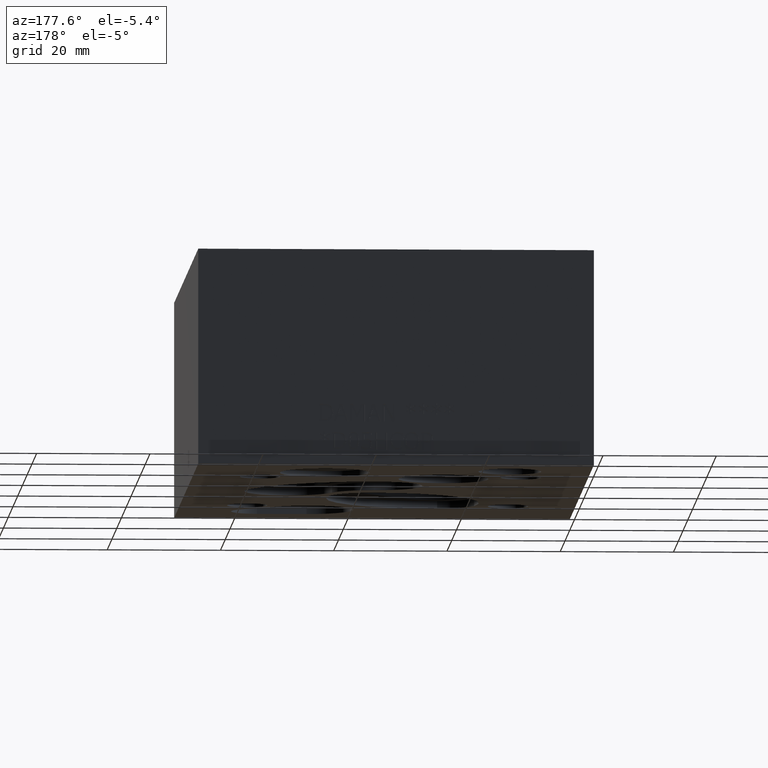
[diagram: clean part render]
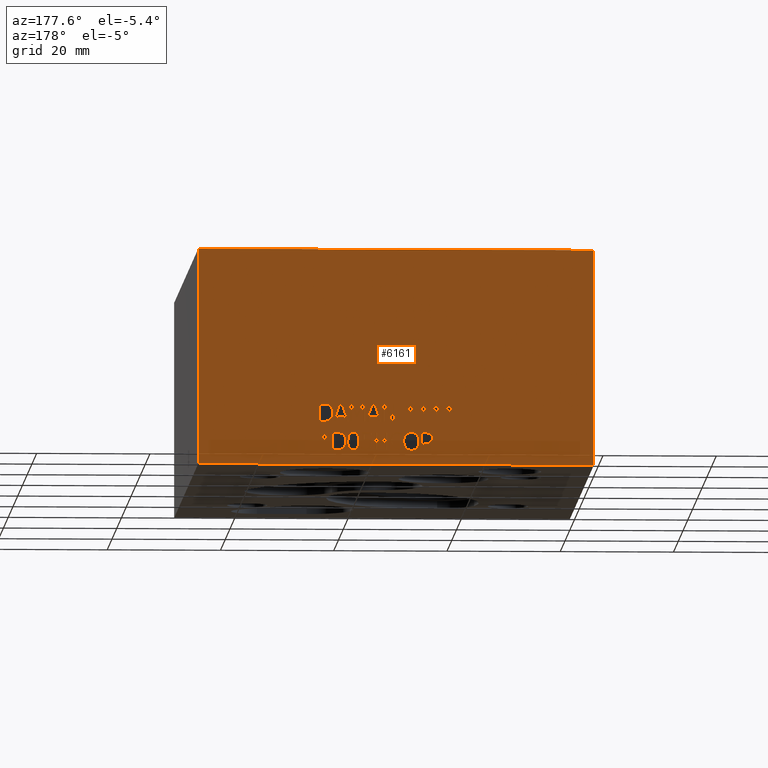
[diagram: same view with one face highlighted and labeled with its STEP entity id]
A machine part, auxiliary view. The second image highlights one B-rep face of the part: STEP entity #6161.
In plain terms, the highlighted planar face has unit normal (0, 1, 0).
Its self-contained STEP definition (entity closure, byte-faithful):
#111=FACE_BOUND('',#834,.T.);
#112=FACE_BOUND('',#835,.T.);
#113=FACE_BOUND('',#836,.T.);
#114=FACE_BOUND('',#837,.T.);
#115=FACE_BOUND('',#838,.T.);
#116=FACE_BOUND('',#839,.T.);
#117=FACE_BOUND('',#840,.T.);
#118=FACE_BOUND('',#841,.T.);
#119=FACE_BOUND('',#842,.T.);
#120=FACE_BOUND('',#843,.T.);
#121=FACE_BOUND('',#844,.T.);
#122=FACE_BOUND('',#845,.T.);
#123=FACE_BOUND('',#846,.T.);
#124=FACE_BOUND('',#847,.T.);
#125=FACE_BOUND('',#848,.T.);
#126=FACE_BOUND('',#849,.T.);
#127=FACE_BOUND('',#850,.T.);
#500=FACE_OUTER_BOUND('',#833,.T.);
#833=EDGE_LOOP('',(#5188,#5189,#5190,#5191));
#834=EDGE_LOOP('',(#5192,#5193,#5194,#5195,#5196,#5197,#5198,#5199,#5200,
#5201,#5202,#5203,#5204,#5205,#5206,#5207,#5208,#5209,#5210,#5211));
#835=EDGE_LOOP('',(#5212,#5213,#5214,#5215,#5216,#5217,#5218));
#836=EDGE_LOOP('',(#5219,#5220,#5221,#5222,#5223,#5224,#5225,#5226));
#837=EDGE_LOOP('',(#5227,#5228,#5229,#5230,#5231,#5232,#5233,#5234));
#838=EDGE_LOOP('',(#5235,#5236,#5237,#5238,#5239,#5240,#5241,#5242,#5243,
#5244,#5245,#5246,#5247));
#839=EDGE_LOOP('',(#5248,#5249,#5250,#5251,#5252,#5253,#5254,#5255,#5256,
#5257));
#840=EDGE_LOOP('',(#5258,#5259,#5260,#5261,#5262,#5263,#5264,#5265,#5266,
#5267,#5268,#5269,#5270,#5271,#5272,#5273,#5274,#5275));
#841=EDGE_LOOP('',(#5276,#5277,#5278,#5279,#5280,#5281,#5282,#5283,#5284,
#5285,#5286,#5287,#5288,#5289,#5290,#5291,#5292,#5293));
#842=EDGE_LOOP('',(#5294,#5295,#5296,#5297,#5298,#5299,#5300,#5301,#5302,
#5303,#5304,#5305,#5306,#5307,#5308,#5309,#5310,#5311));
#843=EDGE_LOOP('',(#5312,#5313,#5314,#5315,#5316,#5317,#5318,#5319,#5320,
#5321,#5322,#5323,#5324,#5325,#5326,#5327,#5328,#5329));
#844=EDGE_LOOP('',(#5330,#5331,#5332,#5333,#5334,#5335,#5336,#5337,#5338,
#5339,#5340,#5341,#5342,#5343,#5344,#5345,#5346,#5347));
#845=EDGE_LOOP('',(#5348,#5349,#5350,#5351,#5352,#5353,#5354));
#846=EDGE_LOOP('',(#5355,#5356,#5357,#5358,#5359,#5360,#5361,#5362,#5363,
#5364,#5365,#5366));
#847=EDGE_LOOP('',(#5367,#5368,#5369,#5370));
#848=EDGE_LOOP('',(#5371,#5372,#5373,#5374,#5375,#5376,#5377,#5378));
#849=EDGE_LOOP('',(#5379,#5380,#5381,#5382,#5383,#5384,#5385,#5386,#5387,
#5388,#5389,#5390,#5391,#5392,#5393,#5394,#5395,#5396,#5397,#5398));
#850=EDGE_LOOP('',(#5399,#5400,#5401,#5402,#5403,#5404,#5405,#5406,#5407));
#928=LINE('',#8057,#1594);
#930=LINE('',#8061,#1596);
#936=LINE('',#8121,#1602);
#938=LINE('',#8125,#1604);
#956=LINE('',#8347,#1622);
#959=LINE('',#8352,#1625);
#968=LINE('',#8394,#1634);
#971=LINE('',#8425,#1637);
#975=LINE('',#8433,#1641);
#978=LINE('',#8439,#1644);
#981=LINE('',#8445,#1647);
#988=LINE('',#8460,#1654);
#991=LINE('',#8466,#1657);
#994=LINE('',#8472,#1660);
#997=LINE('',#8477,#1663);
#1020=LINE('',#8525,#1686);
#1023=LINE('',#8530,#1689);
#1025=LINE('',#8534,#1691);
#1027=LINE('',#8538,#1693);
#1030=LINE('',#8544,#1696);
#1032=LINE('',#8548,#1698);
#1034=LINE('',#8552,#1700);
#1036=LINE('',#8555,#1702);
#1037=LINE('',#8559,#1703);
#1041=LINE('',#8567,#1707);
#1044=LINE('',#8573,#1710);
#1047=LINE('',#8579,#1713);
#1050=LINE('',#8585,#1716);
#1053=LINE('',#8591,#1719);
#1056=LINE('',#8597,#1722);
#1059=LINE('',#8603,#1725);
#1062=LINE('',#8609,#1728);
#1065=LINE('',#8615,#1731);
#1068=LINE('',#8621,#1734);
#1071=LINE('',#8627,#1737);
#1074=LINE('',#8632,#1740);
#1086=LINE('',#8659,#1752);
#1089=LINE('',#8664,#1755);
#1091=LINE('',#8668,#1757);
#1093=LINE('',#8672,#1759);
#1095=LINE('',#8676,#1761);
#1097=LINE('',#8680,#1763);
#1099=LINE('',#8684,#1765);
#1101=LINE('',#8688,#1767);
#1103=LINE('',#8692,#1769);
#1105=LINE('',#8695,#1771);
#1106=LINE('',#8699,#1772);
#1110=LINE('',#8707,#1776);
#1113=LINE('',#8713,#1779);
#1116=LINE('',#8719,#1782);
#1119=LINE('',#8725,#1785);
#1122=LINE('',#8731,#1788);
#1125=LINE('',#8737,#1791);
#1128=LINE('',#8743,#1794);
#1131=LINE('',#8749,#1797);
#1134=LINE('',#8755,#1800);
#1137=LINE('',#8761,#1803);
#1140=LINE('',#8767,#1806);
#1143=LINE('',#8773,#1809);
#1146=LINE('',#8779,#1812);
#1149=LINE('',#8785,#1815);
#1152=LINE('',#8791,#1818);
#1155=LINE('',#8797,#1821);
#1158=LINE('',#8802,#1824);
#1178=LINE('',#8845,#1844);
#1181=LINE('',#8850,#1847);
#1183=LINE('',#8854,#1849);
#1185=LINE('',#8858,#1851);
#1187=LINE('',#8862,#1853);
#1189=LINE('',#8866,#1855);
#1191=LINE('',#8870,#1857);
#1193=LINE('',#8874,#1859);
#1195=LINE('',#8878,#1861);
#1197=LINE('',#8882,#1863);
#1199=LINE('',#8886,#1865);
#1201=LINE('',#8890,#1867);
#1203=LINE('',#8894,#1869);
#1205=LINE('',#8898,#1871);
#1207=LINE('',#8902,#1873);
#1209=LINE('',#8906,#1875);
#1211=LINE('',#8910,#1877);
#1213=LINE('',#8913,#1879);
#1214=LINE('',#8917,#1880);
#1218=LINE('',#8925,#1884);
#1221=LINE('',#8931,#1887);
#1224=LINE('',#8937,#1890);
#1227=LINE('',#8943,#1893);
#1230=LINE('',#8949,#1896);
#1233=LINE('',#8955,#1899);
#1236=LINE('',#8961,#1902);
#1239=LINE('',#8967,#1905);
#1242=LINE('',#8973,#1908);
#1245=LINE('',#8979,#1911);
#1248=LINE('',#8985,#1914);
#1251=LINE('',#8991,#1917);
#1254=LINE('',#8997,#1920);
#1257=LINE('',#9003,#1923);
#1260=LINE('',#9009,#1926);
#1263=LINE('',#9015,#1929);
#1266=LINE('',#9020,#1932);
#1286=LINE('',#9063,#1952);
#1289=LINE('',#9068,#1955);
#1291=LINE('',#9072,#1957);
#1293=LINE('',#9076,#1959);
#1295=LINE('',#9080,#1961);
#1297=LINE('',#9084,#1963);
#1299=LINE('',#9088,#1965);
#1301=LINE('',#9092,#1967);
#1303=LINE('',#9096,#1969);
#1305=LINE('',#9100,#1971);
#1307=LINE('',#9104,#1973);
#1309=LINE('',#9108,#1975);
#1311=LINE('',#9112,#1977);
#1313=LINE('',#9116,#1979);
#1315=LINE('',#9120,#1981);
#1317=LINE('',#9124,#1983);
#1319=LINE('',#9128,#1985);
#1321=LINE('',#9131,#1987);
#1322=LINE('',#9135,#1988);
#1326=LINE('',#9143,#1992);
#1329=LINE('',#9149,#1995);
#1332=LINE('',#9155,#1998);
#1335=LINE('',#9161,#2001);
#1338=LINE('',#9167,#2004);
#1341=LINE('',#9173,#2007);
#1344=LINE('',#9179,#2010);
#1347=LINE('',#9185,#2013);
#1350=LINE('',#9191,#2016);
#1353=LINE('',#9197,#2019);
#1356=LINE('',#9203,#2022);
#1359=LINE('',#9209,#2025);
#1362=LINE('',#9215,#2028);
#1365=LINE('',#9221,#2031);
#1368=LINE('',#9227,#2034);
#1371=LINE('',#9233,#2037);
#1374=LINE('',#9238,#2040);
#1387=LINE('',#9379,#2053);
#1390=LINE('',#9384,#2056);
#1399=LINE('',#9426,#2065);
#1402=LINE('',#9457,#2068);
#1406=LINE('',#9465,#2072);
#1409=LINE('',#9471,#2075);
#1412=LINE('',#9477,#2078);
#1415=LINE('',#9483,#2081);
#1418=LINE('',#9489,#2084);
#1421=LINE('',#9495,#2087);
#1424=LINE('',#9501,#2090);
#1427=LINE('',#9507,#2093);
#1430=LINE('',#9513,#2096);
#1433=LINE('',#9519,#2099);
#1436=LINE('',#9524,#2102);
#1474=LINE('',#10255,#2140);
#1476=LINE('',#10259,#2142);
#1478=LINE('',#10263,#2144);
#1480=LINE('',#10267,#2146);
#1482=LINE('',#10271,#2148);
#1492=LINE('',#10387,#2158);
#1494=LINE('',#10391,#2160);
#1501=LINE('',#10482,#2167);
#1504=LINE('',#10488,#2170);
#1519=LINE('',#10559,#2185);
#1522=LINE('',#10565,#2188);
#1525=LINE('',#10570,#2191);
#1530=LINE('',#10663,#2196);
#1531=LINE('',#10665,#2197);
#1532=LINE('',#10667,#2198);
#1533=LINE('',#10668,#2199);
#1594=VECTOR('',#6558,0.393700787401575);
#1596=VECTOR('',#6562,0.393700787401575);
#1602=VECTOR('',#6570,0.393700787401575);
#1604=VECTOR('',#6574,0.393700787401575);
#1622=VECTOR('',#6596,0.393700787401575);
#1625=VECTOR('',#6601,0.393700787401575);
#1634=VECTOR('',#6618,0.393700787401575);
#1637=VECTOR('',#6623,0.393700787401575);
#1641=VECTOR('',#6629,0.393700787401575);
#1644=VECTOR('',#6634,0.393700787401575);
#1647=VECTOR('',#6639,0.393700787401575);
#1654=VECTOR('',#6650,0.393700787401575);
#1657=VECTOR('',#6655,0.393700787401575);
#1660=VECTOR('',#6660,0.393700787401575);
#1663=VECTOR('',#6665,0.393700787401575);
#1686=VECTOR('',#6702,0.393700787401575);
#1689=VECTOR('',#6707,0.393700787401575);
#1691=VECTOR('',#6711,0.393700787401575);
#1693=VECTOR('',#6715,0.393700787401575);
#1696=VECTOR('',#6722,0.393700787401575);
#1698=VECTOR('',#6726,0.393700787401575);
#1700=VECTOR('',#6730,0.393700787401575);
#1702=VECTOR('',#6734,0.393700787401575);
#1703=VECTOR('',#6737,0.393700787401575);
#1707=VECTOR('',#6743,0.393700787401575);
#1710=VECTOR('',#6748,0.393700787401575);
#1713=VECTOR('',#6753,0.393700787401575);
#1716=VECTOR('',#6758,0.393700787401575);
#1719=VECTOR('',#6763,0.393700787401575);
#1722=VECTOR('',#6768,0.393700787401575);
#1725=VECTOR('',#6773,0.393700787401575);
#1728=VECTOR('',#6778,0.393700787401575);
#1731=VECTOR('',#6783,0.393700787401575);
#1734=VECTOR('',#6788,0.393700787401575);
#1737=VECTOR('',#6793,0.393700787401575);
#1740=VECTOR('',#6798,0.393700787401575);
#1752=VECTOR('',#6816,0.393700787401575);
#1755=VECTOR('',#6821,0.393700787401575);
#1757=VECTOR('',#6825,0.393700787401575);
#1759=VECTOR('',#6829,0.393700787401575);
#1761=VECTOR('',#6833,0.393700787401575);
#1763=VECTOR('',#6837,0.393700787401575);
#1765=VECTOR('',#6841,0.393700787401575);
#1767=VECTOR('',#6845,0.393700787401575);
#1769=VECTOR('',#6849,0.393700787401575);
#1771=VECTOR('',#6853,0.393700787401575);
#1772=VECTOR('',#6856,0.393700787401575);
#1776=VECTOR('',#6862,0.393700787401575);
#1779=VECTOR('',#6867,0.393700787401575);
#1782=VECTOR('',#6872,0.393700787401575);
#1785=VECTOR('',#6877,0.393700787401575);
#1788=VECTOR('',#6882,0.393700787401575);
#1791=VECTOR('',#6887,0.393700787401575);
#1794=VECTOR('',#6892,0.393700787401575);
#1797=VECTOR('',#6897,0.393700787401575);
#1800=VECTOR('',#6902,0.393700787401575);
#1803=VECTOR('',#6907,0.393700787401575);
#1806=VECTOR('',#6912,0.393700787401575);
#1809=VECTOR('',#6917,0.393700787401575);
#1812=VECTOR('',#6922,0.393700787401575);
#1815=VECTOR('',#6927,0.393700787401575);
#1818=VECTOR('',#6932,0.393700787401575);
#1821=VECTOR('',#6937,0.393700787401575);
#1824=VECTOR('',#6942,0.393700787401575);
#1844=VECTOR('',#6968,0.393700787401575);
#1847=VECTOR('',#6973,0.393700787401575);
#1849=VECTOR('',#6977,0.393700787401575);
#1851=VECTOR('',#6981,0.393700787401575);
#1853=VECTOR('',#6985,0.393700787401575);
#1855=VECTOR('',#6989,0.393700787401575);
#1857=VECTOR('',#6993,0.393700787401575);
#1859=VECTOR('',#6997,0.393700787401575);
#1861=VECTOR('',#7001,0.393700787401575);
#1863=VECTOR('',#7005,0.393700787401575);
#1865=VECTOR('',#7009,0.393700787401575);
#1867=VECTOR('',#7013,0.393700787401575);
#1869=VECTOR('',#7017,0.393700787401575);
#1871=VECTOR('',#7021,0.393700787401575);
#1873=VECTOR('',#7025,0.393700787401575);
#1875=VECTOR('',#7029,0.393700787401575);
#1877=VECTOR('',#7033,0.393700787401575);
#1879=VECTOR('',#7037,0.393700787401575);
#1880=VECTOR('',#7040,0.393700787401575);
#1884=VECTOR('',#7046,0.393700787401575);
#1887=VECTOR('',#7051,0.393700787401575);
#1890=VECTOR('',#7056,0.393700787401575);
#1893=VECTOR('',#7061,0.393700787401575);
#1896=VECTOR('',#7066,0.393700787401575);
#1899=VECTOR('',#7071,0.393700787401575);
#1902=VECTOR('',#7076,0.393700787401575);
#1905=VECTOR('',#7081,0.393700787401575);
#1908=VECTOR('',#7086,0.393700787401575);
#1911=VECTOR('',#7091,0.393700787401575);
#1914=VECTOR('',#7096,0.393700787401575);
#1917=VECTOR('',#7101,0.393700787401575);
#1920=VECTOR('',#7106,0.393700787401575);
#1923=VECTOR('',#7111,0.393700787401575);
#1926=VECTOR('',#7116,0.393700787401575);
#1929=VECTOR('',#7121,0.393700787401575);
#1932=VECTOR('',#7126,0.393700787401575);
#1952=VECTOR('',#7152,0.393700787401575);
#1955=VECTOR('',#7157,0.393700787401575);
#1957=VECTOR('',#7161,0.393700787401575);
#1959=VECTOR('',#7165,0.393700787401575);
#1961=VECTOR('',#7169,0.393700787401575);
#1963=VECTOR('',#7173,0.393700787401575);
#1965=VECTOR('',#7177,0.393700787401575);
#1967=VECTOR('',#7181,0.393700787401575);
#1969=VECTOR('',#7185,0.393700787401575);
#1971=VECTOR('',#7189,0.393700787401575);
#1973=VECTOR('',#7193,0.393700787401575);
#1975=VECTOR('',#7197,0.393700787401575);
#1977=VECTOR('',#7201,0.393700787401575);
#1979=VECTOR('',#7205,0.393700787401575);
#1981=VECTOR('',#7209,0.393700787401575);
#1983=VECTOR('',#7213,0.393700787401575);
#1985=VECTOR('',#7217,0.393700787401575);
#1987=VECTOR('',#7221,0.393700787401575);
#1988=VECTOR('',#7224,0.393700787401575);
#1992=VECTOR('',#7230,0.393700787401575);
#1995=VECTOR('',#7235,0.393700787401575);
#1998=VECTOR('',#7240,0.393700787401575);
#2001=VECTOR('',#7245,0.393700787401575);
#2004=VECTOR('',#7250,0.393700787401575);
#2007=VECTOR('',#7255,0.393700787401575);
#2010=VECTOR('',#7260,0.393700787401575);
#2013=VECTOR('',#7265,0.393700787401575);
#2016=VECTOR('',#7270,0.393700787401575);
#2019=VECTOR('',#7275,0.393700787401575);
#2022=VECTOR('',#7280,0.393700787401575);
#2025=VECTOR('',#7285,0.393700787401575);
#2028=VECTOR('',#7290,0.393700787401575);
#2031=VECTOR('',#7295,0.393700787401575);
#2034=VECTOR('',#7300,0.393700787401575);
#2037=VECTOR('',#7305,0.393700787401575);
#2040=VECTOR('',#7310,0.393700787401575);
#2053=VECTOR('',#7329,0.393700787401575);
#2056=VECTOR('',#7334,0.393700787401575);
#2065=VECTOR('',#7351,0.393700787401575);
#2068=VECTOR('',#7356,0.393700787401575);
#2072=VECTOR('',#7362,0.393700787401575);
#2075=VECTOR('',#7367,0.393700787401575);
#2078=VECTOR('',#7372,0.393700787401575);
#2081=VECTOR('',#7377,0.393700787401575);
#2084=VECTOR('',#7382,0.393700787401575);
#2087=VECTOR('',#7387,0.393700787401575);
#2090=VECTOR('',#7392,0.393700787401575);
#2093=VECTOR('',#7397,0.393700787401575);
#2096=VECTOR('',#7402,0.393700787401575);
#2099=VECTOR('',#7407,0.393700787401575);
#2102=VECTOR('',#7412,0.393700787401575);
#2140=VECTOR('',#7460,0.393700787401575);
#2142=VECTOR('',#7464,0.393700787401575);
#2144=VECTOR('',#7468,0.393700787401575);
#2146=VECTOR('',#7472,0.393700787401575);
#2148=VECTOR('',#7476,0.393700787401575);
#2158=VECTOR('',#7488,0.393700787401575);
#2160=VECTOR('',#7492,0.393700787401575);
#2167=VECTOR('',#7501,0.393700787401575);
#2170=VECTOR('',#7506,0.393700787401575);
#2185=VECTOR('',#7529,0.393700787401575);
#2188=VECTOR('',#7534,0.393700787401575);
#2191=VECTOR('',#7539,0.393700787401575);
#2196=VECTOR('',#7552,2.75);
#2197=VECTOR('',#7553,1.5);
#2198=VECTOR('',#7554,2.75);
#2199=VECTOR('',#7555,1.5);
#2265=B_SPLINE_CURVE_WITH_KNOTS('',2,(#7979,#7980,#7981,#7982),
 .UNSPECIFIED.,.F.,.F.,(3,1,3),(0.,1.,2.),.UNSPECIFIED.);
#2266=B_SPLINE_CURVE_WITH_KNOTS('',2,(#7994,#7995,#7996,#7997),
 .UNSPECIFIED.,.F.,.F.,(3,1,3),(0.,1.,2.),.UNSPECIFIED.);
#2267=B_SPLINE_CURVE_WITH_KNOTS('',2,(#8008,#8009,#8010,#8011),
 .UNSPECIFIED.,.F.,.F.,(3,1,3),(0.,1.,2.),.UNSPECIFIED.);
#2268=B_SPLINE_CURVE_WITH_KNOTS('',2,(#8022,#8023,#8024,#8025),
 .UNSPECIFIED.,.F.,.F.,(3,1,3),(0.,1.,2.),.UNSPECIFIED.);
#2269=B_SPLINE_CURVE_WITH_KNOTS('',2,(#8036,#8037,#8038,#8039),
 .UNSPECIFIED.,.F.,.F.,(3,1,3),(0.,1.,2.),.UNSPECIFIED.);
#2270=B_SPLINE_CURVE_WITH_KNOTS('',2,(#8050,#8051,#8052,#8053),
 .UNSPECIFIED.,.F.,.F.,(3,1,3),(0.,1.,2.),.UNSPECIFIED.);
#2271=B_SPLINE_CURVE_WITH_KNOTS('',2,(#8072,#8073,#8074,#8075),
 .UNSPECIFIED.,.F.,.F.,(3,1,3),(0.,1.,2.),.UNSPECIFIED.);
#2272=B_SPLINE_CURVE_WITH_KNOTS('',2,(#8086,#8087,#8088,#8089),
 .UNSPECIFIED.,.F.,.F.,(3,1,3),(0.,1.,2.),.UNSPECIFIED.);
#2273=B_SPLINE_CURVE_WITH_KNOTS('',2,(#8100,#8101,#8102,#8103),
 .UNSPECIFIED.,.F.,.F.,(3,1,3),(0.,1.,2.),.UNSPECIFIED.);
#2274=B_SPLINE_CURVE_WITH_KNOTS('',2,(#8114,#8115,#8116,#8117),
 .UNSPECIFIED.,.F.,.F.,(3,1,3),(0.,1.,2.),.UNSPECIFIED.);
#2275=B_SPLINE_CURVE_WITH_KNOTS('',2,(#8136,#8137,#8138,#8139),
 .UNSPECIFIED.,.F.,.F.,(3,1,3),(0.,1.,2.),.UNSPECIFIED.);
#2276=B_SPLINE_CURVE_WITH_KNOTS('',2,(#8150,#8151,#8152,#8153),
 .UNSPECIFIED.,.F.,.F.,(3,1,3),(0.,1.,2.),.UNSPECIFIED.);
#2277=B_SPLINE_CURVE_WITH_KNOTS('',2,(#8164,#8165,#8166,#8167),
 .UNSPECIFIED.,.F.,.F.,(3,1,3),(0.,1.,2.),.UNSPECIFIED.);
#2278=B_SPLINE_CURVE_WITH_KNOTS('',2,(#8178,#8179,#8180,#8181),
 .UNSPECIFIED.,.F.,.F.,(3,1,3),(0.,1.,2.),.UNSPECIFIED.);
#2279=B_SPLINE_CURVE_WITH_KNOTS('',2,(#8192,#8193,#8194,#8195),
 .UNSPECIFIED.,.F.,.F.,(3,1,3),(0.,1.,2.),.UNSPECIFIED.);
#2280=B_SPLINE_CURVE_WITH_KNOTS('',2,(#8205,#8206,#8207,#8208),
 .UNSPECIFIED.,.F.,.F.,(3,1,3),(0.,1.,2.),.UNSPECIFIED.);
#2293=B_SPLINE_CURVE_WITH_KNOTS('',2,(#8363,#8364,#8365,#8366),
 .UNSPECIFIED.,.F.,.F.,(3,1,3),(0.,1.,2.),.UNSPECIFIED.);
#2294=B_SPLINE_CURVE_WITH_KNOTS('',2,(#8377,#8378,#8379,#8380),
 .UNSPECIFIED.,.F.,.F.,(3,1,3),(0.,1.,2.),.UNSPECIFIED.);
#2295=B_SPLINE_CURVE_WITH_KNOTS('',2,(#8405,#8406,#8407,#8408),
 .UNSPECIFIED.,.F.,.F.,(3,1,3),(0.,1.,2.),.UNSPECIFIED.);
#2296=B_SPLINE_CURVE_WITH_KNOTS('',2,(#8418,#8419,#8420,#8421),
 .UNSPECIFIED.,.F.,.F.,(3,1,3),(0.,1.,2.),.UNSPECIFIED.);
#2309=B_SPLINE_CURVE_WITH_KNOTS('',2,(#9395,#9396,#9397,#9398),
 .UNSPECIFIED.,.F.,.F.,(3,1,3),(0.,1.,2.),.UNSPECIFIED.);
#2310=B_SPLINE_CURVE_WITH_KNOTS('',2,(#9409,#9410,#9411,#9412),
 .UNSPECIFIED.,.F.,.F.,(3,1,3),(0.,1.,2.),.UNSPECIFIED.);
#2311=B_SPLINE_CURVE_WITH_KNOTS('',2,(#9437,#9438,#9439,#9440),
 .UNSPECIFIED.,.F.,.F.,(3,1,3),(0.,1.,2.),.UNSPECIFIED.);
#2312=B_SPLINE_CURVE_WITH_KNOTS('',2,(#9450,#9451,#9452,#9453),
 .UNSPECIFIED.,.F.,.F.,(3,1,3),(0.,1.,2.),.UNSPECIFIED.);
#2329=B_SPLINE_CURVE_WITH_KNOTS('',2,(#9695,#9696,#9697,#9698),
 .UNSPECIFIED.,.F.,.F.,(3,1,3),(0.,1.,2.),.UNSPECIFIED.);
#2330=B_SPLINE_CURVE_WITH_KNOTS('',2,(#9710,#9711,#9712,#9713),
 .UNSPECIFIED.,.F.,.F.,(3,1,3),(0.,1.,2.),.UNSPECIFIED.);
#2335=B_SPLINE_CURVE_WITH_KNOTS('',2,(#9778,#9779,#9780,#9781),
 .UNSPECIFIED.,.F.,.F.,(3,1,3),(0.,1.,2.),.UNSPECIFIED.);
#2336=B_SPLINE_CURVE_WITH_KNOTS('',2,(#9791,#9792,#9793,#9794),
 .UNSPECIFIED.,.F.,.F.,(3,1,3),(0.,1.,2.),.UNSPECIFIED.);
#2337=B_SPLINE_CURVE_WITH_KNOTS('',2,(#9805,#9806,#9807,#9808),
 .UNSPECIFIED.,.F.,.F.,(3,1,3),(0.,1.,2.),.UNSPECIFIED.);
#2339=B_SPLINE_CURVE_WITH_KNOTS('',2,(#9829,#9830,#9831,#9832),
 .UNSPECIFIED.,.F.,.F.,(3,1,3),(0.,1.,2.),.UNSPECIFIED.);
#2341=B_SPLINE_CURVE_WITH_KNOTS('',2,(#9851,#9852,#9853,#9854),
 .UNSPECIFIED.,.F.,.F.,(3,1,3),(0.,1.,2.),.UNSPECIFIED.);
#2343=B_SPLINE_CURVE_WITH_KNOTS('',2,(#9873,#9874,#9875,#9876),
 .UNSPECIFIED.,.F.,.F.,(3,1,3),(0.,1.,2.),.UNSPECIFIED.);
#2351=B_SPLINE_CURVE_WITH_KNOTS('',2,(#9964,#9965,#9966,#9967),
 .UNSPECIFIED.,.F.,.F.,(3,1,3),(0.,1.,2.),.UNSPECIFIED.);
#2353=B_SPLINE_CURVE_WITH_KNOTS('',2,(#9986,#9987,#9988,#9989),
 .UNSPECIFIED.,.F.,.F.,(3,1,3),(0.,1.,2.),.UNSPECIFIED.);
#2355=B_SPLINE_CURVE_WITH_KNOTS('',2,(#10008,#10009,#10010,#10011),
 .UNSPECIFIED.,.F.,.F.,(3,1,3),(0.,1.,2.),.UNSPECIFIED.);
#2357=B_SPLINE_CURVE_WITH_KNOTS('',2,(#10028,#10029,#10030,#10031),
 .UNSPECIFIED.,.F.,.F.,(3,1,3),(0.,1.,2.),.UNSPECIFIED.);
#2378=B_SPLINE_CURVE_WITH_KNOTS('',2,(#10233,#10234,#10235,#10236),
 .UNSPECIFIED.,.F.,.F.,(3,1,3),(0.,1.,2.),.UNSPECIFIED.);
#2379=B_SPLINE_CURVE_WITH_KNOTS('',2,(#10248,#10249,#10250,#10251),
 .UNSPECIFIED.,.F.,.F.,(3,1,3),(0.,1.,2.),.UNSPECIFIED.);
#2380=B_SPLINE_CURVE_WITH_KNOTS('',2,(#10282,#10283,#10284,#10285),
 .UNSPECIFIED.,.F.,.F.,(3,1,3),(0.,1.,2.),.UNSPECIFIED.);
#2381=B_SPLINE_CURVE_WITH_KNOTS('',2,(#10296,#10297,#10298,#10299),
 .UNSPECIFIED.,.F.,.F.,(3,1,3),(0.,1.,2.),.UNSPECIFIED.);
#2382=B_SPLINE_CURVE_WITH_KNOTS('',2,(#10310,#10311,#10312,#10313),
 .UNSPECIFIED.,.F.,.F.,(3,1,3),(0.,1.,2.),.UNSPECIFIED.);
#2383=B_SPLINE_CURVE_WITH_KNOTS('',2,(#10324,#10325,#10326,#10327),
 .UNSPECIFIED.,.F.,.F.,(3,1,3),(0.,1.,2.),.UNSPECIFIED.);
#2384=B_SPLINE_CURVE_WITH_KNOTS('',2,(#10338,#10339,#10340,#10341),
 .UNSPECIFIED.,.F.,.F.,(3,1,3),(0.,1.,2.),.UNSPECIFIED.);
#2385=B_SPLINE_CURVE_WITH_KNOTS('',2,(#10352,#10353,#10354,#10355),
 .UNSPECIFIED.,.F.,.F.,(3,1,3),(0.,1.,2.),.UNSPECIFIED.);
#2386=B_SPLINE_CURVE_WITH_KNOTS('',2,(#10366,#10367,#10368,#10369),
 .UNSPECIFIED.,.F.,.F.,(3,1,3),(0.,1.,2.),.UNSPECIFIED.);
#2387=B_SPLINE_CURVE_WITH_KNOTS('',2,(#10380,#10381,#10382,#10383),
 .UNSPECIFIED.,.F.,.F.,(3,1,3),(0.,1.,2.),.UNSPECIFIED.);
#2388=B_SPLINE_CURVE_WITH_KNOTS('',2,(#10402,#10403,#10404,#10405),
 .UNSPECIFIED.,.F.,.F.,(3,1,3),(0.,1.,2.),.UNSPECIFIED.);
#2389=B_SPLINE_CURVE_WITH_KNOTS('',2,(#10416,#10417,#10418,#10419),
 .UNSPECIFIED.,.F.,.F.,(3,1,3),(0.,1.,2.),.UNSPECIFIED.);
#2390=B_SPLINE_CURVE_WITH_KNOTS('',2,(#10429,#10430,#10431,#10432),
 .UNSPECIFIED.,.F.,.F.,(3,1,3),(0.,1.,2.),.UNSPECIFIED.);
#2391=B_SPLINE_CURVE_WITH_KNOTS('',2,(#10443,#10444,#10445,#10446),
 .UNSPECIFIED.,.F.,.F.,(3,1,3),(0.,1.,2.),.UNSPECIFIED.);
#2393=B_SPLINE_CURVE_WITH_KNOTS('',2,(#10467,#10468,#10469,#10470),
 .UNSPECIFIED.,.F.,.F.,(3,1,3),(0.,1.,2.),.UNSPECIFIED.);
#2395=B_SPLINE_CURVE_WITH_KNOTS('',2,(#10522,#10523,#10524,#10525),
 .UNSPECIFIED.,.F.,.F.,(3,1,3),(0.,1.,2.),.UNSPECIFIED.);
#2397=B_SPLINE_CURVE_WITH_KNOTS('',2,(#10544,#10545,#10546,#10547),
 .UNSPECIFIED.,.F.,.F.,(3,1,3),(0.,1.,2.),.UNSPECIFIED.);
#2427=VERTEX_POINT('',#7977);
#2428=VERTEX_POINT('',#7978);
#2429=VERTEX_POINT('',#7993);
#2430=VERTEX_POINT('',#8007);
#2431=VERTEX_POINT('',#8021);
#2432=VERTEX_POINT('',#8035);
#2433=VERTEX_POINT('',#8049);
#2434=VERTEX_POINT('',#8056);
#2435=VERTEX_POINT('',#8060);
#2436=VERTEX_POINT('',#8071);
#2437=VERTEX_POINT('',#8085);
#2438=VERTEX_POINT('',#8099);
#2439=VERTEX_POINT('',#8113);
#2440=VERTEX_POINT('',#8120);
#2441=VERTEX_POINT('',#8124);
#2442=VERTEX_POINT('',#8135);
#2443=VERTEX_POINT('',#8149);
#2444=VERTEX_POINT('',#8163);
#2445=VERTEX_POINT('',#8177);
#2446=VERTEX_POINT('',#8191);
#2466=VERTEX_POINT('',#8345);
#2467=VERTEX_POINT('',#8346);
#2468=VERTEX_POINT('',#8351);
#2469=VERTEX_POINT('',#8362);
#2470=VERTEX_POINT('',#8376);
#2473=VERTEX_POINT('',#8393);
#2474=VERTEX_POINT('',#8404);
#2475=VERTEX_POINT('',#8423);
#2476=VERTEX_POINT('',#8424);
#2479=VERTEX_POINT('',#8432);
#2481=VERTEX_POINT('',#8438);
#2483=VERTEX_POINT('',#8444);
#2489=VERTEX_POINT('',#8459);
#2491=VERTEX_POINT('',#8465);
#2493=VERTEX_POINT('',#8471);
#2511=VERTEX_POINT('',#8523);
#2512=VERTEX_POINT('',#8524);
#2513=VERTEX_POINT('',#8529);
#2514=VERTEX_POINT('',#8533);
#2515=VERTEX_POINT('',#8537);
#2516=VERTEX_POINT('',#8543);
#2517=VERTEX_POINT('',#8547);
#2518=VERTEX_POINT('',#8551);
#2519=VERTEX_POINT('',#8557);
#2520=VERTEX_POINT('',#8558);
#2523=VERTEX_POINT('',#8566);
#2525=VERTEX_POINT('',#8572);
#2527=VERTEX_POINT('',#8578);
#2529=VERTEX_POINT('',#8584);
#2531=VERTEX_POINT('',#8590);
#2533=VERTEX_POINT('',#8596);
#2535=VERTEX_POINT('',#8602);
#2537=VERTEX_POINT('',#8608);
#2539=VERTEX_POINT('',#8614);
#2541=VERTEX_POINT('',#8620);
#2543=VERTEX_POINT('',#8626);
#2555=VERTEX_POINT('',#8657);
#2556=VERTEX_POINT('',#8658);
#2557=VERTEX_POINT('',#8663);
#2558=VERTEX_POINT('',#8667);
#2559=VERTEX_POINT('',#8671);
#2560=VERTEX_POINT('',#8675);
#2561=VERTEX_POINT('',#8679);
#2562=VERTEX_POINT('',#8683);
#2563=VERTEX_POINT('',#8687);
#2564=VERTEX_POINT('',#8691);
#2565=VERTEX_POINT('',#8697);
#2566=VERTEX_POINT('',#8698);
#2569=VERTEX_POINT('',#8706);
#2571=VERTEX_POINT('',#8712);
#2573=VERTEX_POINT('',#8718);
#2575=VERTEX_POINT('',#8724);
#2577=VERTEX_POINT('',#8730);
#2579=VERTEX_POINT('',#8736);
#2581=VERTEX_POINT('',#8742);
#2583=VERTEX_POINT('',#8748);
#2585=VERTEX_POINT('',#8754);
#2587=VERTEX_POINT('',#8760);
#2589=VERTEX_POINT('',#8766);
#2591=VERTEX_POINT('',#8772);
#2593=VERTEX_POINT('',#8778);
#2595=VERTEX_POINT('',#8784);
#2597=VERTEX_POINT('',#8790);
#2599=VERTEX_POINT('',#8796);
#2619=VERTEX_POINT('',#8843);
#2620=VERTEX_POINT('',#8844);
#2621=VERTEX_POINT('',#8849);
#2622=VERTEX_POINT('',#8853);
#2623=VERTEX_POINT('',#8857);
#2624=VERTEX_POINT('',#8861);
#2625=VERTEX_POINT('',#8865);
#2626=VERTEX_POINT('',#8869);
#2627=VERTEX_POINT('',#8873);
#2628=VERTEX_POINT('',#8877);
#2629=VERTEX_POINT('',#8881);
#2630=VERTEX_POINT('',#8885);
#2631=VERTEX_POINT('',#8889);
#2632=VERTEX_POINT('',#8893);
#2633=VERTEX_POINT('',#8897);
#2634=VERTEX_POINT('',#8901);
#2635=VERTEX_POINT('',#8905);
#2636=VERTEX_POINT('',#8909);
#2637=VERTEX_POINT('',#8915);
#2638=VERTEX_POINT('',#8916);
#2641=VERTEX_POINT('',#8924);
#2643=VERTEX_POINT('',#8930);
#2645=VERTEX_POINT('',#8936);
#2647=VERTEX_POINT('',#8942);
#2649=VERTEX_POINT('',#8948);
#2651=VERTEX_POINT('',#8954);
#2653=VERTEX_POINT('',#8960);
#2655=VERTEX_POINT('',#8966);
#2657=VERTEX_POINT('',#8972);
#2659=VERTEX_POINT('',#8978);
#2661=VERTEX_POINT('',#8984);
#2663=VERTEX_POINT('',#8990);
#2665=VERTEX_POINT('',#8996);
#2667=VERTEX_POINT('',#9002);
#2669=VERTEX_POINT('',#9008);
#2671=VERTEX_POINT('',#9014);
#2691=VERTEX_POINT('',#9061);
#2692=VERTEX_POINT('',#9062);
#2693=VERTEX_POINT('',#9067);
#2694=VERTEX_POINT('',#9071);
#2695=VERTEX_POINT('',#9075);
#2696=VERTEX_POINT('',#9079);
#2697=VERTEX_POINT('',#9083);
#2698=VERTEX_POINT('',#9087);
#2699=VERTEX_POINT('',#9091);
#2700=VERTEX_POINT('',#9095);
#2701=VERTEX_POINT('',#9099);
#2702=VERTEX_POINT('',#9103);
#2703=VERTEX_POINT('',#9107);
#2704=VERTEX_POINT('',#9111);
#2705=VERTEX_POINT('',#9115);
#2706=VERTEX_POINT('',#9119);
#2707=VERTEX_POINT('',#9123);
#2708=VERTEX_POINT('',#9127);
#2709=VERTEX_POINT('',#9133);
#2710=VERTEX_POINT('',#9134);
#2713=VERTEX_POINT('',#9142);
#2715=VERTEX_POINT('',#9148);
#2717=VERTEX_POINT('',#9154);
#2719=VERTEX_POINT('',#9160);
#2721=VERTEX_POINT('',#9166);
#2723=VERTEX_POINT('',#9172);
#2725=VERTEX_POINT('',#9178);
#2727=VERTEX_POINT('',#9184);
#2729=VERTEX_POINT('',#9190);
#2731=VERTEX_POINT('',#9196);
#2733=VERTEX_POINT('',#9202);
#2735=VERTEX_POINT('',#9208);
#2737=VERTEX_POINT('',#9214);
#2739=VERTEX_POINT('',#9220);
#2741=VERTEX_POINT('',#9226);
#2743=VERTEX_POINT('',#9232);
#2764=VERTEX_POINT('',#9377);
#2765=VERTEX_POINT('',#9378);
#2766=VERTEX_POINT('',#9383);
#2767=VERTEX_POINT('',#9394);
#2768=VERTEX_POINT('',#9408);
#2771=VERTEX_POINT('',#9425);
#2772=VERTEX_POINT('',#9436);
#2773=VERTEX_POINT('',#9455);
#2774=VERTEX_POINT('',#9456);
#2777=VERTEX_POINT('',#9464);
#2779=VERTEX_POINT('',#9470);
#2781=VERTEX_POINT('',#9476);
#2783=VERTEX_POINT('',#9482);
#2785=VERTEX_POINT('',#9488);
#2787=VERTEX_POINT('',#9494);
#2789=VERTEX_POINT('',#9500);
#2791=VERTEX_POINT('',#9506);
#2793=VERTEX_POINT('',#9512);
#2795=VERTEX_POINT('',#9518);
#2814=VERTEX_POINT('',#9693);
#2815=VERTEX_POINT('',#9694);
#2816=VERTEX_POINT('',#9709);
#2820=VERTEX_POINT('',#9777);
#2821=VERTEX_POINT('',#9803);
#2822=VERTEX_POINT('',#9804);
#2825=VERTEX_POINT('',#9828);
#2827=VERTEX_POINT('',#9850);
#2829=VERTEX_POINT('',#9872);
#2839=VERTEX_POINT('',#9963);
#2841=VERTEX_POINT('',#9985);
#2843=VERTEX_POINT('',#10007);
#2869=VERTEX_POINT('',#10231);
#2870=VERTEX_POINT('',#10232);
#2871=VERTEX_POINT('',#10247);
#2872=VERTEX_POINT('',#10254);
#2873=VERTEX_POINT('',#10258);
#2874=VERTEX_POINT('',#10262);
#2875=VERTEX_POINT('',#10266);
#2876=VERTEX_POINT('',#10270);
#2877=VERTEX_POINT('',#10281);
#2878=VERTEX_POINT('',#10295);
#2879=VERTEX_POINT('',#10309);
#2880=VERTEX_POINT('',#10323);
#2881=VERTEX_POINT('',#10337);
#2882=VERTEX_POINT('',#10351);
#2883=VERTEX_POINT('',#10365);
#2884=VERTEX_POINT('',#10379);
#2885=VERTEX_POINT('',#10386);
#2886=VERTEX_POINT('',#10390);
#2887=VERTEX_POINT('',#10401);
#2888=VERTEX_POINT('',#10415);
#2889=VERTEX_POINT('',#10441);
#2890=VERTEX_POINT('',#10442);
#2893=VERTEX_POINT('',#10466);
#2895=VERTEX_POINT('',#10481);
#2897=VERTEX_POINT('',#10487);
#2907=VERTEX_POINT('',#10521);
#2909=VERTEX_POINT('',#10543);
#2911=VERTEX_POINT('',#10558);
#2913=VERTEX_POINT('',#10564);
#2921=VERTEX_POINT('',#10661);
#2922=VERTEX_POINT('',#10662);
#2923=VERTEX_POINT('',#10664);
#2924=VERTEX_POINT('',#10666);
#3023=EDGE_CURVE('',#2427,#2428,#2265,.T.);
#3026=EDGE_CURVE('',#2428,#2429,#2266,.T.);
#3028=EDGE_CURVE('',#2429,#2430,#2267,.T.);
#3030=EDGE_CURVE('',#2430,#2431,#2268,.T.);
#3032=EDGE_CURVE('',#2431,#2432,#2269,.T.);
#3034=EDGE_CURVE('',#2432,#2433,#2270,.T.);
#3036=EDGE_CURVE('',#2433,#2434,#928,.T.);
#3038=EDGE_CURVE('',#2434,#2435,#930,.T.);
#3040=EDGE_CURVE('',#2435,#2436,#2271,.T.);
#3042=EDGE_CURVE('',#2436,#2437,#2272,.T.);
#3044=EDGE_CURVE('',#2438,#2427,#2273,.T.);
#3046=EDGE_CURVE('',#2439,#2438,#2274,.T.);
#3048=EDGE_CURVE('',#2440,#2439,#936,.T.);
#3050=EDGE_CURVE('',#2441,#2440,#938,.T.);
#3052=EDGE_CURVE('',#2442,#2441,#2275,.T.);
#3054=EDGE_CURVE('',#2443,#2442,#2276,.T.);
#3056=EDGE_CURVE('',#2444,#2443,#2277,.T.);
#3058=EDGE_CURVE('',#2445,#2444,#2278,.T.);
#3060=EDGE_CURVE('',#2446,#2445,#2279,.T.);
#3062=EDGE_CURVE('',#2437,#2446,#2280,.T.);
#3086=EDGE_CURVE('',#2466,#2467,#956,.T.);
#3089=EDGE_CURVE('',#2467,#2468,#959,.T.);
#3091=EDGE_CURVE('',#2468,#2469,#2293,.T.);
#3093=EDGE_CURVE('',#2469,#2470,#2294,.T.);
#3100=EDGE_CURVE('',#2473,#2466,#968,.T.);
#3102=EDGE_CURVE('',#2474,#2473,#2295,.T.);
#3104=EDGE_CURVE('',#2470,#2474,#2296,.T.);
#3105=EDGE_CURVE('',#2475,#2476,#971,.T.);
#3109=EDGE_CURVE('',#2476,#2479,#975,.T.);
#3112=EDGE_CURVE('',#2479,#2481,#978,.T.);
#3115=EDGE_CURVE('',#2481,#2483,#981,.T.);
#3122=EDGE_CURVE('',#2489,#2475,#988,.T.);
#3125=EDGE_CURVE('',#2491,#2489,#991,.T.);
#3128=EDGE_CURVE('',#2493,#2491,#994,.T.);
#3131=EDGE_CURVE('',#2483,#2493,#997,.T.);
#3154=EDGE_CURVE('',#2511,#2512,#1020,.T.);
#3157=EDGE_CURVE('',#2512,#2513,#1023,.T.);
#3159=EDGE_CURVE('',#2513,#2514,#1025,.T.);
#3161=EDGE_CURVE('',#2514,#2515,#1027,.T.);
#3164=EDGE_CURVE('',#2516,#2511,#1030,.T.);
#3166=EDGE_CURVE('',#2517,#2516,#1032,.T.);
#3168=EDGE_CURVE('',#2518,#2517,#1034,.T.);
#3170=EDGE_CURVE('',#2515,#2518,#1036,.T.);
#3171=EDGE_CURVE('',#2519,#2520,#1037,.T.);
#3175=EDGE_CURVE('',#2520,#2523,#1041,.T.);
#3178=EDGE_CURVE('',#2523,#2525,#1044,.T.);
#3181=EDGE_CURVE('',#2525,#2527,#1047,.T.);
#3184=EDGE_CURVE('',#2527,#2529,#1050,.T.);
#3187=EDGE_CURVE('',#2529,#2531,#1053,.T.);
#3190=EDGE_CURVE('',#2533,#2519,#1056,.T.);
#3193=EDGE_CURVE('',#2535,#2533,#1059,.T.);
#3196=EDGE_CURVE('',#2537,#2535,#1062,.T.);
#3199=EDGE_CURVE('',#2539,#2537,#1065,.T.);
#3202=EDGE_CURVE('',#2541,#2539,#1068,.T.);
#3205=EDGE_CURVE('',#2543,#2541,#1071,.T.);
#3208=EDGE_CURVE('',#2531,#2543,#1074,.T.);
#3220=EDGE_CURVE('',#2555,#2556,#1086,.T.);
#3223=EDGE_CURVE('',#2556,#2557,#1089,.T.);
#3225=EDGE_CURVE('',#2557,#2558,#1091,.T.);
#3227=EDGE_CURVE('',#2558,#2559,#1093,.T.);
#3229=EDGE_CURVE('',#2559,#2560,#1095,.T.);
#3231=EDGE_CURVE('',#2561,#2555,#1097,.T.);
#3233=EDGE_CURVE('',#2562,#2561,#1099,.T.);
#3235=EDGE_CURVE('',#2563,#2562,#1101,.T.);
#3237=EDGE_CURVE('',#2564,#2563,#1103,.T.);
#3239=EDGE_CURVE('',#2560,#2564,#1105,.T.);
#3240=EDGE_CURVE('',#2565,#2566,#1106,.T.);
#3244=EDGE_CURVE('',#2566,#2569,#1110,.T.);
#3247=EDGE_CURVE('',#2569,#2571,#1113,.T.);
#3250=EDGE_CURVE('',#2571,#2573,#1116,.T.);
#3253=EDGE_CURVE('',#2573,#2575,#1119,.T.);
#3256=EDGE_CURVE('',#2575,#2577,#1122,.T.);
#3259=EDGE_CURVE('',#2577,#2579,#1125,.T.);
#3262=EDGE_CURVE('',#2579,#2581,#1128,.T.);
#3265=EDGE_CURVE('',#2581,#2583,#1131,.T.);
#3268=EDGE_CURVE('',#2585,#2565,#1134,.T.);
#3271=EDGE_CURVE('',#2587,#2585,#1137,.T.);
#3274=EDGE_CURVE('',#2589,#2587,#1140,.T.);
#3277=EDGE_CURVE('',#2591,#2589,#1143,.T.);
#3280=EDGE_CURVE('',#2593,#2591,#1146,.T.);
#3283=EDGE_CURVE('',#2595,#2593,#1149,.T.);
#3286=EDGE_CURVE('',#2597,#2595,#1152,.T.);
#3289=EDGE_CURVE('',#2599,#2597,#1155,.T.);
#3292=EDGE_CURVE('',#2583,#2599,#1158,.T.);
#3312=EDGE_CURVE('',#2619,#2620,#1178,.T.);
#3315=EDGE_CURVE('',#2620,#2621,#1181,.T.);
#3317=EDGE_CURVE('',#2621,#2622,#1183,.T.);
#3319=EDGE_CURVE('',#2622,#2623,#1185,.T.);
#3321=EDGE_CURVE('',#2623,#2624,#1187,.T.);
#3323=EDGE_CURVE('',#2624,#2625,#1189,.T.);
#3325=EDGE_CURVE('',#2625,#2626,#1191,.T.);
#3327=EDGE_CURVE('',#2626,#2627,#1193,.T.);
#3329=EDGE_CURVE('',#2627,#2628,#1195,.T.);
#3331=EDGE_CURVE('',#2629,#2619,#1197,.T.);
#3333=EDGE_CURVE('',#2630,#2629,#1199,.T.);
#3335=EDGE_CURVE('',#2631,#2630,#1201,.T.);
#3337=EDGE_CURVE('',#2632,#2631,#1203,.T.);
#3339=EDGE_CURVE('',#2633,#2632,#1205,.T.);
#3341=EDGE_CURVE('',#2634,#2633,#1207,.T.);
#3343=EDGE_CURVE('',#2635,#2634,#1209,.T.);
#3345=EDGE_CURVE('',#2636,#2635,#1211,.T.);
#3347=EDGE_CURVE('',#2628,#2636,#1213,.T.);
#3348=EDGE_CURVE('',#2637,#2638,#1214,.T.);
#3352=EDGE_CURVE('',#2638,#2641,#1218,.T.);
#3355=EDGE_CURVE('',#2641,#2643,#1221,.T.);
#3358=EDGE_CURVE('',#2643,#2645,#1224,.T.);
#3361=EDGE_CURVE('',#2645,#2647,#1227,.T.);
#3364=EDGE_CURVE('',#2647,#2649,#1230,.T.);
#3367=EDGE_CURVE('',#2649,#2651,#1233,.T.);
#3370=EDGE_CURVE('',#2651,#2653,#1236,.T.);
#3373=EDGE_CURVE('',#2653,#2655,#1239,.T.);
#3376=EDGE_CURVE('',#2657,#2637,#1242,.T.);
#3379=EDGE_CURVE('',#2659,#2657,#1245,.T.);
#3382=EDGE_CURVE('',#2661,#2659,#1248,.T.);
#3385=EDGE_CURVE('',#2663,#2661,#1251,.T.);
#3388=EDGE_CURVE('',#2665,#2663,#1254,.T.);
#3391=EDGE_CURVE('',#2667,#2665,#1257,.T.);
#3394=EDGE_CURVE('',#2669,#2667,#1260,.T.);
#3397=EDGE_CURVE('',#2671,#2669,#1263,.T.);
#3400=EDGE_CURVE('',#2655,#2671,#1266,.T.);
#3420=EDGE_CURVE('',#2691,#2692,#1286,.T.);
#3423=EDGE_CURVE('',#2692,#2693,#1289,.T.);
#3425=EDGE_CURVE('',#2693,#2694,#1291,.T.);
#3427=EDGE_CURVE('',#2694,#2695,#1293,.T.);
#3429=EDGE_CURVE('',#2695,#2696,#1295,.T.);
#3431=EDGE_CURVE('',#2696,#2697,#1297,.T.);
#3433=EDGE_CURVE('',#2697,#2698,#1299,.T.);
#3435=EDGE_CURVE('',#2698,#2699,#1301,.T.);
#3437=EDGE_CURVE('',#2699,#2700,#1303,.T.);
#3439=EDGE_CURVE('',#2701,#2691,#1305,.T.);
#3441=EDGE_CURVE('',#2702,#2701,#1307,.T.);
#3443=EDGE_CURVE('',#2703,#2702,#1309,.T.);
#3445=EDGE_CURVE('',#2704,#2703,#1311,.T.);
#3447=EDGE_CURVE('',#2705,#2704,#1313,.T.);
#3449=EDGE_CURVE('',#2706,#2705,#1315,.T.);
#3451=EDGE_CURVE('',#2707,#2706,#1317,.T.);
#3453=EDGE_CURVE('',#2708,#2707,#1319,.T.);
#3455=EDGE_CURVE('',#2700,#2708,#1321,.T.);
#3456=EDGE_CURVE('',#2709,#2710,#1322,.T.);
#3460=EDGE_CURVE('',#2710,#2713,#1326,.T.);
#3463=EDGE_CURVE('',#2713,#2715,#1329,.T.);
#3466=EDGE_CURVE('',#2715,#2717,#1332,.T.);
#3469=EDGE_CURVE('',#2717,#2719,#1335,.T.);
#3472=EDGE_CURVE('',#2719,#2721,#1338,.T.);
#3475=EDGE_CURVE('',#2721,#2723,#1341,.T.);
#3478=EDGE_CURVE('',#2723,#2725,#1344,.T.);
#3481=EDGE_CURVE('',#2725,#2727,#1347,.T.);
#3484=EDGE_CURVE('',#2729,#2709,#1350,.T.);
#3487=EDGE_CURVE('',#2731,#2729,#1353,.T.);
#3490=EDGE_CURVE('',#2733,#2731,#1356,.T.);
#3493=EDGE_CURVE('',#2735,#2733,#1359,.T.);
#3496=EDGE_CURVE('',#2737,#2735,#1362,.T.);
#3499=EDGE_CURVE('',#2739,#2737,#1365,.T.);
#3502=EDGE_CURVE('',#2741,#2739,#1368,.T.);
#3505=EDGE_CURVE('',#2743,#2741,#1371,.T.);
#3508=EDGE_CURVE('',#2727,#2743,#1374,.T.);
#3533=EDGE_CURVE('',#2764,#2765,#1387,.T.);
#3536=EDGE_CURVE('',#2765,#2766,#1390,.T.);
#3538=EDGE_CURVE('',#2766,#2767,#2309,.T.);
#3540=EDGE_CURVE('',#2767,#2768,#2310,.T.);
#3547=EDGE_CURVE('',#2771,#2764,#1399,.T.);
#3549=EDGE_CURVE('',#2772,#2771,#2311,.T.);
#3551=EDGE_CURVE('',#2768,#2772,#2312,.T.);
#3552=EDGE_CURVE('',#2773,#2774,#1402,.T.);
#3556=EDGE_CURVE('',#2774,#2777,#1406,.T.);
#3559=EDGE_CURVE('',#2777,#2779,#1409,.T.);
#3562=EDGE_CURVE('',#2779,#2781,#1412,.T.);
#3565=EDGE_CURVE('',#2781,#2783,#1415,.T.);
#3568=EDGE_CURVE('',#2783,#2785,#1418,.T.);
#3571=EDGE_CURVE('',#2787,#2773,#1421,.T.);
#3574=EDGE_CURVE('',#2789,#2787,#1424,.T.);
#3577=EDGE_CURVE('',#2791,#2789,#1427,.T.);
#3580=EDGE_CURVE('',#2793,#2791,#1430,.T.);
#3583=EDGE_CURVE('',#2795,#2793,#1433,.T.);
#3586=EDGE_CURVE('',#2785,#2795,#1436,.T.);
#3609=EDGE_CURVE('',#2814,#2815,#2329,.T.);
#3612=EDGE_CURVE('',#2815,#2816,#2330,.T.);
#3621=EDGE_CURVE('',#2820,#2814,#2335,.T.);
#3623=EDGE_CURVE('',#2816,#2820,#2336,.T.);
#3624=EDGE_CURVE('',#2821,#2822,#2337,.T.);
#3628=EDGE_CURVE('',#2822,#2825,#2339,.T.);
#3631=EDGE_CURVE('',#2825,#2827,#2341,.T.);
#3634=EDGE_CURVE('',#2827,#2829,#2343,.T.);
#3647=EDGE_CURVE('',#2839,#2821,#2351,.T.);
#3650=EDGE_CURVE('',#2841,#2839,#2353,.T.);
#3653=EDGE_CURVE('',#2843,#2841,#2355,.T.);
#3656=EDGE_CURVE('',#2829,#2843,#2357,.T.);
#3686=EDGE_CURVE('',#2869,#2870,#2378,.T.);
#3689=EDGE_CURVE('',#2870,#2871,#2379,.T.);
#3691=EDGE_CURVE('',#2871,#2872,#1474,.T.);
#3693=EDGE_CURVE('',#2872,#2873,#1476,.T.);
#3695=EDGE_CURVE('',#2873,#2874,#1478,.T.);
#3697=EDGE_CURVE('',#2874,#2875,#1480,.T.);
#3699=EDGE_CURVE('',#2875,#2876,#1482,.T.);
#3701=EDGE_CURVE('',#2876,#2877,#2380,.T.);
#3703=EDGE_CURVE('',#2877,#2878,#2381,.T.);
#3705=EDGE_CURVE('',#2878,#2879,#2382,.T.);
#3707=EDGE_CURVE('',#2880,#2869,#2383,.T.);
#3709=EDGE_CURVE('',#2881,#2880,#2384,.T.);
#3711=EDGE_CURVE('',#2882,#2881,#2385,.T.);
#3713=EDGE_CURVE('',#2883,#2882,#2386,.T.);
#3715=EDGE_CURVE('',#2884,#2883,#2387,.T.);
#3717=EDGE_CURVE('',#2885,#2884,#1492,.T.);
#3719=EDGE_CURVE('',#2886,#2885,#1494,.T.);
#3721=EDGE_CURVE('',#2887,#2886,#2388,.T.);
#3723=EDGE_CURVE('',#2888,#2887,#2389,.T.);
#3725=EDGE_CURVE('',#2879,#2888,#2390,.T.);
#3726=EDGE_CURVE('',#2889,#2890,#2391,.T.);
#3730=EDGE_CURVE('',#2890,#2893,#2393,.T.);
#3733=EDGE_CURVE('',#2893,#2895,#1501,.T.);
#3736=EDGE_CURVE('',#2895,#2897,#1504,.T.);
#3749=EDGE_CURVE('',#2907,#2889,#2395,.T.);
#3752=EDGE_CURVE('',#2909,#2907,#2397,.T.);
#3755=EDGE_CURVE('',#2911,#2909,#1519,.T.);
#3758=EDGE_CURVE('',#2913,#2911,#1522,.T.);
#3761=EDGE_CURVE('',#2897,#2913,#1525,.T.);
#3774=EDGE_CURVE('',#2921,#2922,#1530,.T.);
#3775=EDGE_CURVE('',#2923,#2922,#1531,.T.);
#3776=EDGE_CURVE('',#2923,#2924,#1532,.T.);
#3777=EDGE_CURVE('',#2924,#2921,#1533,.T.);
#5188=ORIENTED_EDGE('',*,*,#3774,.T.);
#5189=ORIENTED_EDGE('',*,*,#3775,.F.);
#5190=ORIENTED_EDGE('',*,*,#3776,.T.);
#5191=ORIENTED_EDGE('',*,*,#3777,.T.);
#5192=ORIENTED_EDGE('',*,*,#3023,.T.);
#5193=ORIENTED_EDGE('',*,*,#3026,.T.);
#5194=ORIENTED_EDGE('',*,*,#3028,.T.);
#5195=ORIENTED_EDGE('',*,*,#3030,.T.);
#5196=ORIENTED_EDGE('',*,*,#3032,.T.);
#5197=ORIENTED_EDGE('',*,*,#3034,.T.);
#5198=ORIENTED_EDGE('',*,*,#3036,.T.);
#5199=ORIENTED_EDGE('',*,*,#3038,.T.);
#5200=ORIENTED_EDGE('',*,*,#3040,.T.);
#5201=ORIENTED_EDGE('',*,*,#3042,.T.);
#5202=ORIENTED_EDGE('',*,*,#3062,.T.);
#5203=ORIENTED_EDGE('',*,*,#3060,.T.);
#5204=ORIENTED_EDGE('',*,*,#3058,.T.);
#5205=ORIENTED_EDGE('',*,*,#3056,.T.);
#5206=ORIENTED_EDGE('',*,*,#3054,.T.);
#5207=ORIENTED_EDGE('',*,*,#3052,.T.);
#5208=ORIENTED_EDGE('',*,*,#3050,.T.);
#5209=ORIENTED_EDGE('',*,*,#3048,.T.);
#5210=ORIENTED_EDGE('',*,*,#3046,.T.);
#5211=ORIENTED_EDGE('',*,*,#3044,.T.);
#5212=ORIENTED_EDGE('',*,*,#3086,.T.);
#5213=ORIENTED_EDGE('',*,*,#3089,.T.);
#5214=ORIENTED_EDGE('',*,*,#3091,.T.);
#5215=ORIENTED_EDGE('',*,*,#3093,.T.);
#5216=ORIENTED_EDGE('',*,*,#3104,.T.);
#5217=ORIENTED_EDGE('',*,*,#3102,.T.);
#5218=ORIENTED_EDGE('',*,*,#3100,.T.);
#5219=ORIENTED_EDGE('',*,*,#3105,.T.);
#5220=ORIENTED_EDGE('',*,*,#3109,.T.);
#5221=ORIENTED_EDGE('',*,*,#3112,.T.);
#5222=ORIENTED_EDGE('',*,*,#3115,.T.);
#5223=ORIENTED_EDGE('',*,*,#3131,.T.);
#5224=ORIENTED_EDGE('',*,*,#3128,.T.);
#5225=ORIENTED_EDGE('',*,*,#3125,.T.);
#5226=ORIENTED_EDGE('',*,*,#3122,.T.);
#5227=ORIENTED_EDGE('',*,*,#3154,.T.);
#5228=ORIENTED_EDGE('',*,*,#3157,.T.);
#5229=ORIENTED_EDGE('',*,*,#3159,.T.);
#5230=ORIENTED_EDGE('',*,*,#3161,.T.);
#5231=ORIENTED_EDGE('',*,*,#3170,.T.);
#5232=ORIENTED_EDGE('',*,*,#3168,.T.);
#5233=ORIENTED_EDGE('',*,*,#3166,.T.);
#5234=ORIENTED_EDGE('',*,*,#3164,.T.);
#5235=ORIENTED_EDGE('',*,*,#3171,.T.);
#5236=ORIENTED_EDGE('',*,*,#3175,.T.);
#5237=ORIENTED_EDGE('',*,*,#3178,.T.);
#5238=ORIENTED_EDGE('',*,*,#3181,.T.);
#5239=ORIENTED_EDGE('',*,*,#3184,.T.);
#5240=ORIENTED_EDGE('',*,*,#3187,.T.);
#5241=ORIENTED_EDGE('',*,*,#3208,.T.);
#5242=ORIENTED_EDGE('',*,*,#3205,.T.);
#5243=ORIENTED_EDGE('',*,*,#3202,.T.);
#5244=ORIENTED_EDGE('',*,*,#3199,.T.);
#5245=ORIENTED_EDGE('',*,*,#3196,.T.);
#5246=ORIENTED_EDGE('',*,*,#3193,.T.);
#5247=ORIENTED_EDGE('',*,*,#3190,.T.);
#5248=ORIENTED_EDGE('',*,*,#3220,.T.);
#5249=ORIENTED_EDGE('',*,*,#3223,.T.);
#5250=ORIENTED_EDGE('',*,*,#3225,.T.);
#5251=ORIENTED_EDGE('',*,*,#3227,.T.);
#5252=ORIENTED_EDGE('',*,*,#3229,.T.);
#5253=ORIENTED_EDGE('',*,*,#3239,.T.);
#5254=ORIENTED_EDGE('',*,*,#3237,.T.);
#5255=ORIENTED_EDGE('',*,*,#3235,.T.);
#5256=ORIENTED_EDGE('',*,*,#3233,.T.);
#5257=ORIENTED_EDGE('',*,*,#3231,.T.);
#5258=ORIENTED_EDGE('',*,*,#3240,.T.);
#5259=ORIENTED_EDGE('',*,*,#3244,.T.);
#5260=ORIENTED_EDGE('',*,*,#3247,.T.);
#5261=ORIENTED_EDGE('',*,*,#3250,.T.);
#5262=ORIENTED_EDGE('',*,*,#3253,.T.);
#5263=ORIENTED_EDGE('',*,*,#3256,.T.);
#5264=ORIENTED_EDGE('',*,*,#3259,.T.);
#5265=ORIENTED_EDGE('',*,*,#3262,.T.);
#5266=ORIENTED_EDGE('',*,*,#3265,.T.);
#5267=ORIENTED_EDGE('',*,*,#3292,.T.);
#5268=ORIENTED_EDGE('',*,*,#3289,.T.);
#5269=ORIENTED_EDGE('',*,*,#3286,.T.);
#5270=ORIENTED_EDGE('',*,*,#3283,.T.);
#5271=ORIENTED_EDGE('',*,*,#3280,.T.);
#5272=ORIENTED_EDGE('',*,*,#3277,.T.);
#5273=ORIENTED_EDGE('',*,*,#3274,.T.);
#5274=ORIENTED_EDGE('',*,*,#3271,.T.);
#5275=ORIENTED_EDGE('',*,*,#3268,.T.);
#5276=ORIENTED_EDGE('',*,*,#3312,.T.);
#5277=ORIENTED_EDGE('',*,*,#3315,.T.);
#5278=ORIENTED_EDGE('',*,*,#3317,.T.);
#5279=ORIENTED_EDGE('',*,*,#3319,.T.);
#5280=ORIENTED_EDGE('',*,*,#3321,.T.);
#5281=ORIENTED_EDGE('',*,*,#3323,.T.);
#5282=ORIENTED_EDGE('',*,*,#3325,.T.);
#5283=ORIENTED_EDGE('',*,*,#3327,.T.);
#5284=ORIENTED_EDGE('',*,*,#3329,.T.);
#5285=ORIENTED_EDGE('',*,*,#3347,.T.);
#5286=ORIENTED_EDGE('',*,*,#3345,.T.);
#5287=ORIENTED_EDGE('',*,*,#3343,.T.);
#5288=ORIENTED_EDGE('',*,*,#3341,.T.);
#5289=ORIENTED_EDGE('',*,*,#3339,.T.);
#5290=ORIENTED_EDGE('',*,*,#3337,.T.);
#5291=ORIENTED_EDGE('',*,*,#3335,.T.);
#5292=ORIENTED_EDGE('',*,*,#3333,.T.);
#5293=ORIENTED_EDGE('',*,*,#3331,.T.);
#5294=ORIENTED_EDGE('',*,*,#3348,.T.);
#5295=ORIENTED_EDGE('',*,*,#3352,.T.);
#5296=ORIENTED_EDGE('',*,*,#3355,.T.);
#5297=ORIENTED_EDGE('',*,*,#3358,.T.);
#5298=ORIENTED_EDGE('',*,*,#3361,.T.);
#5299=ORIENTED_EDGE('',*,*,#3364,.T.);
#5300=ORIENTED_EDGE('',*,*,#3367,.T.);
#5301=ORIENTED_EDGE('',*,*,#3370,.T.);
#5302=ORIENTED_EDGE('',*,*,#3373,.T.);
#5303=ORIENTED_EDGE('',*,*,#3400,.T.);
#5304=ORIENTED_EDGE('',*,*,#3397,.T.);
#5305=ORIENTED_EDGE('',*,*,#3394,.T.);
#5306=ORIENTED_EDGE('',*,*,#3391,.T.);
#5307=ORIENTED_EDGE('',*,*,#3388,.T.);
#5308=ORIENTED_EDGE('',*,*,#3385,.T.);
#5309=ORIENTED_EDGE('',*,*,#3382,.T.);
#5310=ORIENTED_EDGE('',*,*,#3379,.T.);
#5311=ORIENTED_EDGE('',*,*,#3376,.T.);
#5312=ORIENTED_EDGE('',*,*,#3420,.T.);
#5313=ORIENTED_EDGE('',*,*,#3423,.T.);
#5314=ORIENTED_EDGE('',*,*,#3425,.T.);
#5315=ORIENTED_EDGE('',*,*,#3427,.T.);
#5316=ORIENTED_EDGE('',*,*,#3429,.T.);
#5317=ORIENTED_EDGE('',*,*,#3431,.T.);
#5318=ORIENTED_EDGE('',*,*,#3433,.T.);
#5319=ORIENTED_EDGE('',*,*,#3435,.T.);
#5320=ORIENTED_EDGE('',*,*,#3437,.T.);
#5321=ORIENTED_EDGE('',*,*,#3455,.T.);
#5322=ORIENTED_EDGE('',*,*,#3453,.T.);
#5323=ORIENTED_EDGE('',*,*,#3451,.T.);
#5324=ORIENTED_EDGE('',*,*,#3449,.T.);
#5325=ORIENTED_EDGE('',*,*,#3447,.T.);
#5326=ORIENTED_EDGE('',*,*,#3445,.T.);
#5327=ORIENTED_EDGE('',*,*,#3443,.T.);
#5328=ORIENTED_EDGE('',*,*,#3441,.T.);
#5329=ORIENTED_EDGE('',*,*,#3439,.T.);
#5330=ORIENTED_EDGE('',*,*,#3456,.T.);
#5331=ORIENTED_EDGE('',*,*,#3460,.T.);
#5332=ORIENTED_EDGE('',*,*,#3463,.T.);
#5333=ORIENTED_EDGE('',*,*,#3466,.T.);
#5334=ORIENTED_EDGE('',*,*,#3469,.T.);
#5335=ORIENTED_EDGE('',*,*,#3472,.T.);
#5336=ORIENTED_EDGE('',*,*,#3475,.T.);
#5337=ORIENTED_EDGE('',*,*,#3478,.T.);
#5338=ORIENTED_EDGE('',*,*,#3481,.T.);
#5339=ORIENTED_EDGE('',*,*,#3508,.T.);
#5340=ORIENTED_EDGE('',*,*,#3505,.T.);
#5341=ORIENTED_EDGE('',*,*,#3502,.T.);
#5342=ORIENTED_EDGE('',*,*,#3499,.T.);
#5343=ORIENTED_EDGE('',*,*,#3496,.T.);
#5344=ORIENTED_EDGE('',*,*,#3493,.T.);
#5345=ORIENTED_EDGE('',*,*,#3490,.T.);
#5346=ORIENTED_EDGE('',*,*,#3487,.T.);
#5347=ORIENTED_EDGE('',*,*,#3484,.T.);
#5348=ORIENTED_EDGE('',*,*,#3533,.T.);
#5349=ORIENTED_EDGE('',*,*,#3536,.T.);
#5350=ORIENTED_EDGE('',*,*,#3538,.T.);
#5351=ORIENTED_EDGE('',*,*,#3540,.T.);
#5352=ORIENTED_EDGE('',*,*,#3551,.T.);
#5353=ORIENTED_EDGE('',*,*,#3549,.T.);
#5354=ORIENTED_EDGE('',*,*,#3547,.T.);
#5355=ORIENTED_EDGE('',*,*,#3552,.T.);
#5356=ORIENTED_EDGE('',*,*,#3556,.T.);
#5357=ORIENTED_EDGE('',*,*,#3559,.T.);
#5358=ORIENTED_EDGE('',*,*,#3562,.T.);
#5359=ORIENTED_EDGE('',*,*,#3565,.T.);
#5360=ORIENTED_EDGE('',*,*,#3568,.T.);
#5361=ORIENTED_EDGE('',*,*,#3586,.T.);
#5362=ORIENTED_EDGE('',*,*,#3583,.T.);
#5363=ORIENTED_EDGE('',*,*,#3580,.T.);
#5364=ORIENTED_EDGE('',*,*,#3577,.T.);
#5365=ORIENTED_EDGE('',*,*,#3574,.T.);
#5366=ORIENTED_EDGE('',*,*,#3571,.T.);
#5367=ORIENTED_EDGE('',*,*,#3609,.T.);
#5368=ORIENTED_EDGE('',*,*,#3612,.T.);
#5369=ORIENTED_EDGE('',*,*,#3623,.T.);
#5370=ORIENTED_EDGE('',*,*,#3621,.T.);
#5371=ORIENTED_EDGE('',*,*,#3624,.T.);
#5372=ORIENTED_EDGE('',*,*,#3628,.T.);
#5373=ORIENTED_EDGE('',*,*,#3631,.T.);
#5374=ORIENTED_EDGE('',*,*,#3634,.T.);
#5375=ORIENTED_EDGE('',*,*,#3656,.T.);
#5376=ORIENTED_EDGE('',*,*,#3653,.T.);
#5377=ORIENTED_EDGE('',*,*,#3650,.T.);
#5378=ORIENTED_EDGE('',*,*,#3647,.T.);
#5379=ORIENTED_EDGE('',*,*,#3686,.T.);
#5380=ORIENTED_EDGE('',*,*,#3689,.T.);
#5381=ORIENTED_EDGE('',*,*,#3691,.T.);
#5382=ORIENTED_EDGE('',*,*,#3693,.T.);
#5383=ORIENTED_EDGE('',*,*,#3695,.T.);
#5384=ORIENTED_EDGE('',*,*,#3697,.T.);
#5385=ORIENTED_EDGE('',*,*,#3699,.T.);
#5386=ORIENTED_EDGE('',*,*,#3701,.T.);
#5387=ORIENTED_EDGE('',*,*,#3703,.T.);
#5388=ORIENTED_EDGE('',*,*,#3705,.T.);
#5389=ORIENTED_EDGE('',*,*,#3725,.T.);
#5390=ORIENTED_EDGE('',*,*,#3723,.T.);
#5391=ORIENTED_EDGE('',*,*,#3721,.T.);
#5392=ORIENTED_EDGE('',*,*,#3719,.T.);
#5393=ORIENTED_EDGE('',*,*,#3717,.T.);
#5394=ORIENTED_EDGE('',*,*,#3715,.T.);
#5395=ORIENTED_EDGE('',*,*,#3713,.T.);
#5396=ORIENTED_EDGE('',*,*,#3711,.T.);
#5397=ORIENTED_EDGE('',*,*,#3709,.T.);
#5398=ORIENTED_EDGE('',*,*,#3707,.T.);
#5399=ORIENTED_EDGE('',*,*,#3726,.T.);
#5400=ORIENTED_EDGE('',*,*,#3730,.T.);
#5401=ORIENTED_EDGE('',*,*,#3733,.T.);
#5402=ORIENTED_EDGE('',*,*,#3736,.T.);
#5403=ORIENTED_EDGE('',*,*,#3761,.T.);
#5404=ORIENTED_EDGE('',*,*,#3758,.T.);
#5405=ORIENTED_EDGE('',*,*,#3755,.T.);
#5406=ORIENTED_EDGE('',*,*,#3752,.T.);
#5407=ORIENTED_EDGE('',*,*,#3749,.T.);
#5861=PLANE('',#6428);
#6161=ADVANCED_FACE('',(#500,#111,#112,#113,#114,#115,#116,#117,#118,#119,
#120,#121,#122,#123,#124,#125,#126,#127),#5861,.T.);
#6428=AXIS2_PLACEMENT_3D('',#10660,#7550,#7551);
#6558=DIRECTION('',(-1.,0.,0.));
#6562=DIRECTION('',(0.,0.,-1.));
#6570=DIRECTION('',(1.,0.,0.));
#6574=DIRECTION('',(0.,0.,-1.));
#6596=DIRECTION('',(0.,0.,1.));
#6601=DIRECTION('',(-1.,0.,0.));
#6618=DIRECTION('',(1.,0.,0.));
#6623=DIRECTION('',(-0.319451166674567,0.,0.947602739606771));
#6629=DIRECTION('',(-1.,0.,0.));
#6634=DIRECTION('',(-0.319451166674567,0.,-0.947602739606771));
#6639=DIRECTION('',(1.,0.,0.));
#6650=DIRECTION('',(1.,0.,0.));
#6655=DIRECTION('',(0.308774363938381,0.,-0.951135317488762));
#6660=DIRECTION('',(1.,0.,0.));
#6665=DIRECTION('',(0.308774363938381,0.,0.951135317488762));
#6702=DIRECTION('',(0.308774363938381,0.,0.951135317488762));
#6707=DIRECTION('',(1.,0.,0.));
#6711=DIRECTION('',(0.30877436393839,0.,-0.951135317488759));
#6715=DIRECTION('',(1.,0.,0.));
#6722=DIRECTION('',(1.,0.,0.));
#6726=DIRECTION('',(-0.319451166674567,0.,-0.947602739606771));
#6730=DIRECTION('',(-1.,0.,0.));
#6734=DIRECTION('',(-0.319451166674567,0.,0.947602739606771));
#6737=DIRECTION('',(1.,0.,0.));
#6743=DIRECTION('',(0.,0.,1.));
#6748=DIRECTION('',(0.406841728378544,0.,-0.913498663408961));
#6753=DIRECTION('',(1.,0.,0.));
#6758=DIRECTION('',(0.403671360964848,0.,0.914904056356068));
#6763=DIRECTION('',(0.,0.,-1.));
#6768=DIRECTION('',(0.,0.,-1.));
#6773=DIRECTION('',(-1.,0.,0.));
#6778=DIRECTION('',(-0.397944692264713,0.,0.917409408006231));
#6783=DIRECTION('',(-0.409094040958197,0.,-0.91249222772169));
#6788=DIRECTION('',(-1.,0.,0.));
#6793=DIRECTION('',(0.,0.,1.));
#6798=DIRECTION('',(1.,0.,0.));
#6816=DIRECTION('',(-1.,0.,0.));
#6821=DIRECTION('',(-0.453406386913822,0.,-0.891303903450307));
#6825=DIRECTION('',(0.,0.,1.));
#6829=DIRECTION('',(-1.,0.,0.));
#6833=DIRECTION('',(0.,0.,-1.));
#6837=DIRECTION('',(0.,0.,1.));
#6841=DIRECTION('',(1.,0.,0.));
#6845=DIRECTION('',(0.,0.,-1.));
#6849=DIRECTION('',(0.456554296231785,0.,0.889695551631174));
#6853=DIRECTION('',(1.,0.,0.));
#6856=DIRECTION('',(0.510320389620605,0.,-0.859984360286555));
#6862=DIRECTION('',(0.832994863913621,0.,0.553280721418637));
#6867=DIRECTION('',(-0.0198636297743432,0.,-0.999802698642181));
#6872=DIRECTION('',(1.,0.,0.));
#6877=DIRECTION('',(-0.0165540227281047,0.,0.999862972777529));
#6882=DIRECTION('',(0.829670163866867,0.,-0.558253902081414));
#6887=DIRECTION('',(0.517259170391713,0.,0.855828809193566));
#6892=DIRECTION('',(-0.862387849576919,0.,0.506248157430817));
#6897=DIRECTION('',(0.863671970566991,0.,0.504054289989611));
#6902=DIRECTION('',(-0.863671970566993,0.,-0.504054289989607));
#6907=DIRECTION('',(0.86495430708312,0.,-0.501850621857101));
#6912=DIRECTION('',(-0.510320389620604,0.,-0.859984360286555));
#6917=DIRECTION('',(-0.833932205726538,0.,0.551866900848448));
#6922=DIRECTION('',(0.0231725839647989,0.,-0.999731479624601));
#6927=DIRECTION('',(-1.,0.,0.));
#6932=DIRECTION('',(0.019863629774343,0.,0.999802698642181));
#6937=DIRECTION('',(-0.83062769207368,0.,-0.556828193575318));
#6942=DIRECTION('',(-0.517259170391713,0.,0.855828809193566));
#6968=DIRECTION('',(-0.517259170391713,0.,0.855828809193566));
#6973=DIRECTION('',(-0.83062769207368,0.,-0.556828193575318));
#6977=DIRECTION('',(0.019863629774343,0.,0.999802698642181));
#6981=DIRECTION('',(-1.,0.,0.));
#6985=DIRECTION('',(0.0231725839647989,0.,-0.999731479624601));
#6989=DIRECTION('',(-0.833932205726538,0.,0.551866900848448));
#6993=DIRECTION('',(-0.510320389620604,0.,-0.859984360286555));
#6997=DIRECTION('',(0.86495430708312,0.,-0.501850621857101));
#7001=DIRECTION('',(-0.863671970566993,0.,-0.504054289989607));
#7005=DIRECTION('',(0.863671970566991,0.,0.504054289989611));
#7009=DIRECTION('',(-0.862387849576919,0.,0.506248157430817));
#7013=DIRECTION('',(0.517259170391713,0.,0.855828809193566));
#7017=DIRECTION('',(0.829670163866867,0.,-0.558253902081414));
#7021=DIRECTION('',(-0.0165540227281047,0.,0.999862972777529));
#7025=DIRECTION('',(1.,0.,0.));
#7029=DIRECTION('',(-0.0198636297743432,0.,-0.999802698642181));
#7033=DIRECTION('',(0.832994863913621,0.,0.553280721418637));
#7037=DIRECTION('',(0.510320389620604,0.,-0.859984360286555));
#7040=DIRECTION('',(0.510320389620604,0.,-0.859984360286555));
#7046=DIRECTION('',(0.832994863913621,0.,0.553280721418637));
#7051=DIRECTION('',(-0.0198636297743432,0.,-0.999802698642181));
#7056=DIRECTION('',(1.,0.,0.));
#7061=DIRECTION('',(-0.0165540227281047,0.,0.999862972777529));
#7066=DIRECTION('',(0.829670163866867,0.,-0.558253902081414));
#7071=DIRECTION('',(0.517259170391713,0.,0.855828809193566));
#7076=DIRECTION('',(-0.862387849576919,0.,0.506248157430817));
#7081=DIRECTION('',(0.863671970566991,0.,0.504054289989611));
#7086=DIRECTION('',(-0.863671970566993,0.,-0.504054289989607));
#7091=DIRECTION('',(0.86495430708312,0.,-0.501850621857101));
#7096=DIRECTION('',(-0.510320389620604,0.,-0.859984360286555));
#7101=DIRECTION('',(-0.833932205726538,0.,0.551866900848448));
#7106=DIRECTION('',(0.0231725839647989,0.,-0.999731479624601));
#7111=DIRECTION('',(-1.,0.,0.));
#7116=DIRECTION('',(0.019863629774343,0.,0.999802698642181));
#7121=DIRECTION('',(-0.83062769207368,0.,-0.556828193575318));
#7126=DIRECTION('',(-0.517259170391713,0.,0.855828809193566));
#7152=DIRECTION('',(-0.517259170391713,0.,0.855828809193566));
#7157=DIRECTION('',(-0.83062769207368,0.,-0.556828193575318));
#7161=DIRECTION('',(0.019863629774343,0.,0.999802698642181));
#7165=DIRECTION('',(-1.,0.,0.));
#7169=DIRECTION('',(0.0231725839647989,0.,-0.999731479624601));
#7173=DIRECTION('',(-0.833932205726538,0.,0.551866900848448));
#7177=DIRECTION('',(-0.510320389620604,0.,-0.859984360286555));
#7181=DIRECTION('',(0.86495430708312,0.,-0.501850621857101));
#7185=DIRECTION('',(-0.863671970566993,0.,-0.504054289989607));
#7189=DIRECTION('',(0.863671970566991,0.,0.504054289989611));
#7193=DIRECTION('',(-0.862387849576919,0.,0.506248157430817));
#7197=DIRECTION('',(0.517259170391713,0.,0.855828809193566));
#7201=DIRECTION('',(0.829670163866867,0.,-0.558253902081414));
#7205=DIRECTION('',(-0.0165540227281047,0.,0.999862972777529));
#7209=DIRECTION('',(1.,0.,0.));
#7213=DIRECTION('',(-0.0198636297743432,0.,-0.999802698642181));
#7217=DIRECTION('',(0.832994863913621,0.,0.553280721418637));
#7221=DIRECTION('',(0.510320389620605,0.,-0.859984360286555));
#7224=DIRECTION('',(0.510320389620605,0.,-0.859984360286555));
#7230=DIRECTION('',(0.832994863913621,0.,0.553280721418637));
#7235=DIRECTION('',(-0.0198636297743432,0.,-0.999802698642181));
#7240=DIRECTION('',(1.,0.,0.));
#7245=DIRECTION('',(-0.0165540227281047,0.,0.999862972777529));
#7250=DIRECTION('',(0.829670163866867,0.,-0.558253902081414));
#7255=DIRECTION('',(0.517259170391713,0.,0.855828809193566));
#7260=DIRECTION('',(-0.862387849576919,0.,0.506248157430817));
#7265=DIRECTION('',(0.863671970566991,0.,0.504054289989611));
#7270=DIRECTION('',(-0.863671970566993,0.,-0.504054289989607));
#7275=DIRECTION('',(0.86495430708312,0.,-0.501850621857101));
#7280=DIRECTION('',(-0.510320389620604,0.,-0.859984360286555));
#7285=DIRECTION('',(-0.833932205726538,0.,0.551866900848448));
#7290=DIRECTION('',(0.0231725839647989,0.,-0.999731479624601));
#7295=DIRECTION('',(-1.,0.,0.));
#7300=DIRECTION('',(0.019863629774343,0.,0.999802698642181));
#7305=DIRECTION('',(-0.83062769207368,0.,-0.556828193575318));
#7310=DIRECTION('',(-0.517259170391713,0.,0.855828809193566));
#7329=DIRECTION('',(-2.9139711572282E-15,0.,1.));
#7334=DIRECTION('',(-1.,0.,0.));
#7351=DIRECTION('',(1.,0.,0.));
#7356=DIRECTION('',(1.,0.,0.));
#7362=DIRECTION('',(-5.95337815897284E-15,0.,1.));
#7367=DIRECTION('',(1.,0.,0.));
#7372=DIRECTION('',(5.95337815897284E-15,0.,-1.));
#7377=DIRECTION('',(1.,0.,0.));
#7382=DIRECTION('',(-2.9139711572282E-15,0.,1.));
#7387=DIRECTION('',(2.9139711572282E-15,0.,-1.));
#7392=DIRECTION('',(-1.,0.,0.));
#7397=DIRECTION('',(0.,0.,1.));
#7402=DIRECTION('',(-1.,0.,0.));
#7407=DIRECTION('',(0.,0.,-1.));
#7412=DIRECTION('',(-1.,0.,0.));
#7460=DIRECTION('',(0.,0.,1.));
#7464=DIRECTION('',(-1.,0.,0.));
#7468=DIRECTION('',(0.,0.,-1.));
#7472=DIRECTION('',(1.,0.,0.));
#7476=DIRECTION('',(0.,0.,-1.));
#7488=DIRECTION('',(-1.,0.,0.));
#7492=DIRECTION('',(0.,0.,1.));
#7501=DIRECTION('',(1.,0.,0.));
#7506=DIRECTION('',(7.81704436526E-15,0.,-1.));
#7529=DIRECTION('',(-1.,0.,0.));
#7534=DIRECTION('',(-2.9139711572282E-15,0.,1.));
#7539=DIRECTION('',(1.,0.,0.));
#7550=DIRECTION('center_axis',(0.,1.,0.));
#7551=DIRECTION('ref_axis',(0.,0.,1.));
#7552=DIRECTION('',(1.,0.,0.));
#7553=DIRECTION('',(0.,0.,1.));
#7554=DIRECTION('',(-1.,0.,0.));
#7555=DIRECTION('',(0.,0.,1.));
#7977=CARTESIAN_POINT('',(1.36697169223225,4.,0.210066715778467));
#7978=CARTESIAN_POINT('',(1.39351950455387,4.,0.197716634588556));
#7979=CARTESIAN_POINT('Ctrl Pts',(1.36697169223225,4.,0.210066715778467));
#7980=CARTESIAN_POINT('Ctrl Pts',(1.37465402620078,4.,0.210066715778467));
#7981=CARTESIAN_POINT('Ctrl Pts',(1.38836553366359,4.,0.203745808082843));
#7982=CARTESIAN_POINT('Ctrl Pts',(1.39351950455387,4.,0.197716634588556));
#7993=CARTESIAN_POINT('',(1.40421642526954,4.,0.161444348889052));
#7994=CARTESIAN_POINT('Ctrl Pts',(1.39351950455387,4.,0.197716634588556));
#7995=CARTESIAN_POINT('Ctrl Pts',(1.39857623071037,4.,0.19159021636049));
#7996=CARTESIAN_POINT('Ctrl Pts',(1.40421642526954,4.,0.173016472208733));
#7997=CARTESIAN_POINT('Ctrl Pts',(1.40421642526954,4.,0.161444348889052));
#8007=CARTESIAN_POINT('',(1.39313052561876,4.,0.125172063189549));
#8008=CARTESIAN_POINT('Ctrl Pts',(1.40421642526954,4.,0.161444348889052));
#8009=CARTESIAN_POINT('Ctrl Pts',(1.40421642526954,4.,0.149094267699141));
#8010=CARTESIAN_POINT('Ctrl Pts',(1.39828449650903,4.,0.131298481417615));
#8011=CARTESIAN_POINT('Ctrl Pts',(1.39313052561876,4.,0.125172063189549));
#8021=CARTESIAN_POINT('',(1.36697169223225,4.,0.113210960934753));
#8022=CARTESIAN_POINT('Ctrl Pts',(1.39313052561876,4.,0.125172063189549));
#8023=CARTESIAN_POINT('Ctrl Pts',(1.38807379946226,4.,0.11924013442904));
#8024=CARTESIAN_POINT('Ctrl Pts',(1.374556781467,4.,0.113210960934753));
#8025=CARTESIAN_POINT('Ctrl Pts',(1.36697169223225,4.,0.113210960934753));
#8035=CARTESIAN_POINT('',(1.34373020085911,4.,0.119142889695261));
#8036=CARTESIAN_POINT('Ctrl Pts',(1.36697169223225,4.,0.113210960934753));
#8037=CARTESIAN_POINT('Ctrl Pts',(1.36006731613395,4.,0.113210960934753));
#8038=CARTESIAN_POINT('Ctrl Pts',(1.34830070334671,4.,0.116614526617012));
#8039=CARTESIAN_POINT('Ctrl Pts',(1.34373020085911,4.,0.119142889695261));
#8049=CARTESIAN_POINT('',(1.33099114073408,4.,0.128770118339366));
#8050=CARTESIAN_POINT('Ctrl Pts',(1.34373020085911,4.,0.119142889695261));
#8051=CARTESIAN_POINT('Ctrl Pts',(1.33935418783906,4.,0.121671252773511));
#8052=CARTESIAN_POINT('Ctrl Pts',(1.33283879067588,4.,0.126922468397568));
#8053=CARTESIAN_POINT('Ctrl Pts',(1.33099114073408,4.,0.128770118339366));
#8056=CARTESIAN_POINT('',(1.32982420392874,4.,0.128770118339366));
#8057=CARTESIAN_POINT('',(0.664912101964369,4.,0.128770118339366));
#8060=CARTESIAN_POINT('',(1.32982420392874,4.,0.109710150518715));
#8061=CARTESIAN_POINT('',(1.32982420392874,4.,0.0548550752593575));
#8071=CARTESIAN_POINT('',(1.34577234026847,4.,0.102903019154197));
#8072=CARTESIAN_POINT('Ctrl Pts',(1.32982420392874,4.,0.109710150518715));
#8073=CARTESIAN_POINT('Ctrl Pts',(1.33381123801367,4.,0.107862500576917));
#8074=CARTESIAN_POINT('Ctrl Pts',(1.34081285884574,4.,0.104458934894658));
#8075=CARTESIAN_POINT('Ctrl Pts',(1.34577234026847,4.,0.102903019154197));
#8085=CARTESIAN_POINT('',(1.36716618169981,4.,0.0994022087381588));
#8086=CARTESIAN_POINT('Ctrl Pts',(1.34577234026847,4.,0.102903019154197));
#8087=CARTESIAN_POINT('Ctrl Pts',(1.35102355589252,4.,0.101152613946178));
#8088=CARTESIAN_POINT('Ctrl Pts',(1.35997007140017,4.,0.0994022087381588));
#8089=CARTESIAN_POINT('Ctrl Pts',(1.36716618169981,4.,0.0994022087381588));
#8099=CARTESIAN_POINT('',(1.34460540346312,4.,0.204329276485516));
#8100=CARTESIAN_POINT('Ctrl Pts',(1.34460540346312,4.,0.204329276485516));
#8101=CARTESIAN_POINT('Ctrl Pts',(1.34917590595072,4.,0.206857639563766));
#8102=CARTESIAN_POINT('Ctrl Pts',(1.35997007140017,4.,0.210066715778467));
#8103=CARTESIAN_POINT('Ctrl Pts',(1.36697169223225,4.,0.210066715778467));
#8113=CARTESIAN_POINT('',(1.33108838546786,4.,0.194313068906297));
#8114=CARTESIAN_POINT('Ctrl Pts',(1.33108838546786,4.,0.194313068906297));
#8115=CARTESIAN_POINT('Ctrl Pts',(1.333227769611,4.,0.196257963581874));
#8116=CARTESIAN_POINT('Ctrl Pts',(1.33984041150796,4.,0.201703668673488));
#8117=CARTESIAN_POINT('Ctrl Pts',(1.34460540346312,4.,0.204329276485516));
#8120=CARTESIAN_POINT('',(1.32982420392874,4.,0.194313068906297));
#8121=CARTESIAN_POINT('',(0.665544192733931,4.,0.194313068906297));
#8124=CARTESIAN_POINT('',(1.32982420392874,4.,0.213567526194505));
#8125=CARTESIAN_POINT('',(1.32982420392874,4.,0.0971565344531485));
#8135=CARTESIAN_POINT('',(1.34577234026846,4.,0.220569147026581));
#8136=CARTESIAN_POINT('Ctrl Pts',(1.34577234026846,4.,0.220569147026581));
#8137=CARTESIAN_POINT('Ctrl Pts',(1.34188255091731,4.,0.219304965487456));
#8138=CARTESIAN_POINT('Ctrl Pts',(1.33381123801367,4.,0.21570691033764));
#8139=CARTESIAN_POINT('Ctrl Pts',(1.32982420392874,4.,0.213567526194505));
#8149=CARTESIAN_POINT('',(1.36687444749847,4.,0.223680978507504));
#8150=CARTESIAN_POINT('Ctrl Pts',(1.36687444749847,4.,0.223680978507504));
#8151=CARTESIAN_POINT('Ctrl Pts',(1.36084527400418,4.,0.223680978507504));
#8152=CARTESIAN_POINT('Ctrl Pts',(1.35024559802229,4.,0.221930573299485));
#8153=CARTESIAN_POINT('Ctrl Pts',(1.34577234026846,4.,0.220569147026581));
#8163=CARTESIAN_POINT('',(1.40586958574378,4.,0.207149373765102));
#8164=CARTESIAN_POINT('Ctrl Pts',(1.40586958574378,4.,0.207149373765102));
#8165=CARTESIAN_POINT('Ctrl Pts',(1.39867347544415,4.,0.215220686668745));
#8166=CARTESIAN_POINT('Ctrl Pts',(1.37903003922082,4.,0.223680978507504));
#8167=CARTESIAN_POINT('Ctrl Pts',(1.36687444749847,4.,0.223680978507504));
#8177=CARTESIAN_POINT('',(1.42084527474572,4.,0.161444348889052));
#8178=CARTESIAN_POINT('Ctrl Pts',(1.42084527474572,4.,0.161444348889052));
#8179=CARTESIAN_POINT('Ctrl Pts',(1.42084527474572,4.,0.176517282624771));
#8180=CARTESIAN_POINT('Ctrl Pts',(1.41316294077719,4.,0.198883571393902));
#8181=CARTESIAN_POINT('Ctrl Pts',(1.40586958574378,4.,0.207149373765102));
#8191=CARTESIAN_POINT('',(1.40577234101,4.,0.115155855610329));
#8192=CARTESIAN_POINT('Ctrl Pts',(1.40577234101,4.,0.115155855610329));
#8193=CARTESIAN_POINT('Ctrl Pts',(1.41296845130964,4.,0.122935434312636));
#8194=CARTESIAN_POINT('Ctrl Pts',(1.42084527474572,4.,0.146274170419555));
#8195=CARTESIAN_POINT('Ctrl Pts',(1.42084527474572,4.,0.161444348889052));
#8205=CARTESIAN_POINT('Ctrl Pts',(1.36716618169981,4.,0.0994022087381588));
#8206=CARTESIAN_POINT('Ctrl Pts',(1.37883554975327,4.,0.0994022087381588));
#8207=CARTESIAN_POINT('Ctrl Pts',(1.39857623071037,4.,0.107279032174244));
#8208=CARTESIAN_POINT('Ctrl Pts',(1.40577234101,4.,0.115155855610329));
#8345=CARTESIAN_POINT('',(1.90755516730877,4.,0.299118435790077));
#8346=CARTESIAN_POINT('',(1.90755516730877,4.,0.419118437273154));
#8347=CARTESIAN_POINT('',(1.90755516730877,4.,0.209559218636577));
#8351=CARTESIAN_POINT('',(1.88022939711691,4.,0.419118437273154));
#8352=CARTESIAN_POINT('',(0.940114698558457,4.,0.419118437273154));
#8362=CARTESIAN_POINT('',(1.83724722478667,4.,0.409588453362828));
#8363=CARTESIAN_POINT('Ctrl Pts',(1.88022939711691,4.,0.419118437273154));
#8364=CARTESIAN_POINT('Ctrl Pts',(1.8633088134394,4.,0.419118437273154));
#8365=CARTESIAN_POINT('Ctrl Pts',(1.84405435615119,4.,0.414061711116654));
#8366=CARTESIAN_POINT('Ctrl Pts',(1.83724722478667,4.,0.409588453362828));
#8376=CARTESIAN_POINT('',(1.81293604134196,4.,0.359021191797837));
#8377=CARTESIAN_POINT('Ctrl Pts',(1.83724722478667,4.,0.409588453362828));
#8378=CARTESIAN_POINT('Ctrl Pts',(1.82567510146699,4.,0.401906119394301));
#8379=CARTESIAN_POINT('Ctrl Pts',(1.81293604134196,4.,0.376525243878026));
#8380=CARTESIAN_POINT('Ctrl Pts',(1.81293604134196,4.,0.359021191797837));
#8393=CARTESIAN_POINT('',(1.87993766291558,4.,0.299118435790077));
#8394=CARTESIAN_POINT('',(0.953777583654383,4.,0.299118435790077));
#8404=CARTESIAN_POINT('',(1.83744171425423,4.,0.308745664434182));
#8405=CARTESIAN_POINT('Ctrl Pts',(1.83744171425423,4.,0.308745664434182));
#8406=CARTESIAN_POINT('Ctrl Pts',(1.84658271922944,4.,0.303008225141231));
#8407=CARTESIAN_POINT('Ctrl Pts',(1.86535095284875,4.,0.299118435790077));
#8408=CARTESIAN_POINT('Ctrl Pts',(1.87993766291558,4.,0.299118435790077));
#8418=CARTESIAN_POINT('Ctrl Pts',(1.81293604134196,4.,0.359021191797837));
#8419=CARTESIAN_POINT('Ctrl Pts',(1.81293604134196,4.,0.342586831789214));
#8420=CARTESIAN_POINT('Ctrl Pts',(1.82625856986966,4.,0.316136264201373));
#8421=CARTESIAN_POINT('Ctrl Pts',(1.83744171425423,4.,0.308745664434182));
#8423=CARTESIAN_POINT('',(1.80856002832192,4.,0.299118435790077));
#8424=CARTESIAN_POINT('',(1.76810621906992,4.,0.419118437273154));
#8425=CARTESIAN_POINT('',(1.74132569894629,4.,0.498558730139907));
#8432=CARTESIAN_POINT('',(1.7484627828466,4.,0.419118437273154));
#8433=CARTESIAN_POINT('',(0.8742313914233,4.,0.419118437273154));
#8438=CARTESIAN_POINT('',(1.70800897359461,4.,0.299118435790077));
#8439=CARTESIAN_POINT('',(1.57558513910216,4.,-0.093696496334151));
#8444=CARTESIAN_POINT('',(1.72483231253834,4.,0.299118435790077));
#8445=CARTESIAN_POINT('',(0.862416156269172,4.,0.299118435790077));
#8459=CARTESIAN_POINT('',(1.79241740251463,4.,0.299118435790077));
#8460=CARTESIAN_POINT('',(0.904280014160958,4.,0.299118435790077));
#8465=CARTESIAN_POINT('',(1.7815259923314,4.,0.332667868943774));
#8466=CARTESIAN_POINT('',(1.75089490276843,4.,0.427022564472561));
#8471=CARTESIAN_POINT('',(1.73572372272157,4.,0.332667868943774));
#8472=CARTESIAN_POINT('',(0.890762996165701,4.,0.332667868943774));
#8477=CARTESIAN_POINT('',(1.6041303958976,4.,-0.0726865752907889));
#8523=CARTESIAN_POINT('',(1.49864106176879,4.,0.299118435790077));
#8524=CARTESIAN_POINT('',(1.50953247195201,4.,0.332667868943774));
#8525=CARTESIAN_POINT('',(1.38872186389026,4.,-0.0394719505321613));
#8529=CARTESIAN_POINT('',(1.55533474156184,4.,0.332667868943774));
#8530=CARTESIAN_POINT('',(0.777667370780922,4.,0.332667868943774));
#8533=CARTESIAN_POINT('',(1.56622615174507,4.,0.299118435790077));
#8534=CARTESIAN_POINT('',(1.53548637076109,4.,0.393807939713941));
#8537=CARTESIAN_POINT('',(1.58236877755236,4.,0.299118435790077));
#8538=CARTESIAN_POINT('',(0.791184388776179,4.,0.299118435790077));
#8543=CARTESIAN_POINT('',(1.48181772282505,4.,0.299118435790077));
#8544=CARTESIAN_POINT('',(0.749320530884393,4.,0.299118435790077));
#8547=CARTESIAN_POINT('',(1.52227153207704,4.,0.419118437273153));
#8548=CARTESIAN_POINT('',(1.36093518922361,4.,-0.0594610028257173));
#8551=CARTESIAN_POINT('',(1.54191496830037,4.,0.419118437273153));
#8552=CARTESIAN_POINT('',(0.761135766038521,4.,0.419118437273153));
#8555=CARTESIAN_POINT('',(1.52667574906774,4.,0.464323236631474));
#8557=CARTESIAN_POINT('',(1.59374641140448,4.,0.299118435790077));
#8558=CARTESIAN_POINT('',(1.60969454774421,4.,0.299118435790077));
#8559=CARTESIAN_POINT('',(0.804847273872105,4.,0.299118435790077));
#8566=CARTESIAN_POINT('',(1.60969454774421,4.,0.402489587796973));
#8567=CARTESIAN_POINT('',(1.60969454774421,4.,0.201244793898487));
#8572=CARTESIAN_POINT('',(1.64100735202099,4.,0.332181645274879));
#8573=CARTESIAN_POINT('',(1.56692497651387,4.,0.498521885932169));
#8578=CARTESIAN_POINT('',(1.65073182539888,4.,0.332181645274879));
#8579=CARTESIAN_POINT('',(0.825365912699438,4.,0.332181645274879));
#8584=CARTESIAN_POINT('',(1.68175289547432,4.,0.402489587796973));
#8585=CARTESIAN_POINT('',(1.470407759878,4.,-0.0765152179589515));
#8590=CARTESIAN_POINT('',(1.68175289547432,4.,0.299118435790077));
#8591=CARTESIAN_POINT('',(1.68175289547432,4.,0.149559217895039));
#8596=CARTESIAN_POINT('',(1.59374641140448,4.,0.419118437273153));
#8597=CARTESIAN_POINT('',(1.59374641140448,4.,0.149559217895039));
#8602=CARTESIAN_POINT('',(1.61591821070605,4.,0.419118437273153));
#8603=CARTESIAN_POINT('',(0.796873205702241,4.,0.419118437273153));
#8608=CARTESIAN_POINT('',(1.64489714137215,4.,0.352311305167097));
#8609=CARTESIAN_POINT('',(1.56447532776201,4.,0.537713271442805));
#8614=CARTESIAN_POINT('',(1.67484851937603,4.,0.419118437273153));
#8615=CARTESIAN_POINT('',(1.44149579975366,4.,-0.101379349676738));
#8620=CARTESIAN_POINT('',(1.69663133974248,4.,0.419118437273153));
#8621=CARTESIAN_POINT('',(0.837424259688013,4.,0.419118437273153));
#8626=CARTESIAN_POINT('',(1.69663133974248,4.,0.299118435790077));
#8627=CARTESIAN_POINT('',(1.69663133974248,4.,0.209559218636577));
#8632=CARTESIAN_POINT('',(0.848315669871242,4.,0.299118435790077));
#8657=CARTESIAN_POINT('',(1.47044008897293,4.,0.419118437273153));
#8658=CARTESIAN_POINT('',(1.44778206600246,4.,0.419118437273153));
#8659=CARTESIAN_POINT('',(0.723891033001229,4.,0.419118437273153));
#8663=CARTESIAN_POINT('',(1.39945143331438,4.,0.324110332371237));
#8664=CARTESIAN_POINT('',(1.19011347268778,4.,-0.087405135500364));
#8667=CARTESIAN_POINT('',(1.39945143331438,4.,0.419118437273153));
#8668=CARTESIAN_POINT('',(1.39945143331438,4.,0.209559218636577));
#8671=CARTESIAN_POINT('',(1.38457298904622,4.,0.419118437273153));
#8672=CARTESIAN_POINT('',(0.692286494523109,4.,0.419118437273153));
#8675=CARTESIAN_POINT('',(1.38457298904622,4.,0.299118435790077));
#8676=CARTESIAN_POINT('',(1.38457298904622,4.,0.149559217895039));
#8679=CARTESIAN_POINT('',(1.47044008897293,4.,0.299118435790077));
#8680=CARTESIAN_POINT('',(1.47044008897293,4.,0.209559218636577));
#8683=CARTESIAN_POINT('',(1.45556164470476,4.,0.299118435790077));
#8684=CARTESIAN_POINT('',(0.735220044486463,4.,0.299118435790077));
#8687=CARTESIAN_POINT('',(1.45556164470476,4.,0.402586832530752));
#8688=CARTESIAN_POINT('',(1.45556164470476,4.,0.149559217895039));
#8691=CARTESIAN_POINT('',(1.40246602006152,4.,0.299118435790077));
#8692=CARTESIAN_POINT('',(1.2220974379611,4.,-0.0523690575338319));
#8695=CARTESIAN_POINT('',(0.701233010030762,4.,0.299118435790077));
#8697=CARTESIAN_POINT('',(1.23967833571576,4.,0.370593315117517));
#8698=CARTESIAN_POINT('',(1.24492955133982,4.,0.361744044343644));
#8699=CARTESIAN_POINT('',(1.16220184133703,4.,0.501155555644629));
#8706=CARTESIAN_POINT('',(1.27128287419388,4.,0.379248096423833));
#8707=CARTESIAN_POINT('',(0.742829780840513,4.,0.0282460417979821));
#8712=CARTESIAN_POINT('',(1.27069940579121,4.,0.349880186822627));
#8713=CARTESIAN_POINT('',(1.26697446016905,4.,0.162391257174095));
#8718=CARTESIAN_POINT('',(1.28081285810421,4.,0.349880186822627));
#8719=CARTESIAN_POINT('',(0.640406429052103,4.,0.349880186822627));
#8724=CARTESIAN_POINT('',(1.28032663443531,4.,0.379248096423833));
#8725=CARTESIAN_POINT('',(1.28328981752259,4.,0.200271837952064));
#8730=CARTESIAN_POINT('',(1.30648546782182,4.,0.361646799609865));
#8731=CARTESIAN_POINT('',(0.940575506487126,4.,0.607853873965174));
#8736=CARTESIAN_POINT('',(1.31183392817965,4.,0.370496070383738));
#8737=CARTESIAN_POINT('',(1.0543321386425,4.,-0.0555523450322752));
#8742=CARTESIAN_POINT('',(1.28334122118246,4.,0.387222164593697));
#8743=CARTESIAN_POINT('',(0.890649736553152,4.,0.617744128266872));
#8748=CARTESIAN_POINT('',(1.31183392817965,4.,0.403851014069877));
#8749=CARTESIAN_POINT('',(0.734660506256646,4.,0.0670023616847759));
#8754=CARTESIAN_POINT('',(1.26817104271296,4.,0.387222164593697));
#8755=CARTESIAN_POINT('',(0.696655560886516,4.,0.0536755864629089));
#8760=CARTESIAN_POINT('',(1.23967833571576,4.,0.403753769336098));
#8761=CARTESIAN_POINT('',(0.877824809510697,4.,0.613702914233235));
#8766=CARTESIAN_POINT('',(1.24492955133982,4.,0.412603040109972));
#8767=CARTESIAN_POINT('',(0.989658328148338,4.,-0.0175762434164028));
#8772=CARTESIAN_POINT('',(1.27138011892766,4.,0.395098988029782));
#8773=CARTESIAN_POINT('',(0.906984827121231,4.,0.63624293113698));
#8778=CARTESIAN_POINT('',(1.27069940579121,4.,0.424466897630989));
#8779=CARTESIAN_POINT('',(1.27561527631902,4.,0.212382197716826));
#8784=CARTESIAN_POINT('',(1.28081285810421,4.,0.424466897630989));
#8785=CARTESIAN_POINT('',(0.635349702895604,4.,0.424466897630989));
#8790=CARTESIAN_POINT('',(1.28022938970153,4.,0.395098988029782));
#8791=CARTESIAN_POINT('',(1.27634528203341,4.,0.199598902067525));
#8796=CARTESIAN_POINT('',(1.30648546782182,4.,0.412700284843751));
#8797=CARTESIAN_POINT('',(0.747217161659696,4.,0.0377833833054394));
#8802=CARTESIAN_POINT('',(1.22305394409468,4.,0.550741533192286));
#8843=CARTESIAN_POINT('',(1.22178530470046,4.,0.403851014069877));
#8844=CARTESIAN_POINT('',(1.21643684434262,4.,0.412700284843751));
#8845=CARTESIAN_POINT('',(1.14505189261374,4.,0.530809932249717));
#8849=CARTESIAN_POINT('',(1.19018076622234,4.,0.395098988029782));
#8850=CARTESIAN_POINT('',(0.688232718207346,4.,0.0586078891752889));
#8853=CARTESIAN_POINT('',(1.19076423462501,4.,0.424466897630989));
#8854=CARTESIAN_POINT('',(1.1863144235172,4.,0.200493071871033));
#8857=CARTESIAN_POINT('',(1.18065078231201,4.,0.424466897630989));
#8858=CARTESIAN_POINT('',(0.590325391156006,4.,0.424466897630989));
#8861=CARTESIAN_POINT('',(1.18133149544846,4.,0.395098988029782));
#8862=CARTESIAN_POINT('',(1.18559082948361,4.,0.211339148227851));
#8865=CARTESIAN_POINT('',(1.15488092786062,4.,0.412603040109972));
#8866=CARTESIAN_POINT('',(0.848248042637959,4.,0.615521861213206));
#8869=CARTESIAN_POINT('',(1.14962971223657,4.,0.403753769336098));
#8870=CARTESIAN_POINT('',(0.911335246602934,4.,0.0021834661386913));
#8873=CARTESIAN_POINT('',(1.17812241923376,4.,0.387222164593697));
#8874=CARTESIAN_POINT('',(0.821460942661474,4.,0.594158857485469));
#8877=CARTESIAN_POINT('',(1.14962971223657,4.,0.370593315117517));
#8878=CARTESIAN_POINT('',(0.640191889518996,4.,0.0732763605622145));
#8881=CARTESIAN_POINT('',(1.19329259770326,4.,0.387222164593697));
#8882=CARTESIAN_POINT('',(0.678196834889125,4.,0.0866031357840816));
#8885=CARTESIAN_POINT('',(1.22178530470046,4.,0.370496070383738));
#8886=CARTESIAN_POINT('',(0.834086270165366,4.,0.5980873124999));
#8889=CARTESIAN_POINT('',(1.21643684434262,4.,0.361646799609865));
#8890=CARTESIAN_POINT('',(0.976330087161563,4.,-0.0356207440897058));
#8893=CARTESIAN_POINT('',(1.19027801095612,4.,0.379248096423833));
#8894=CARTESIAN_POINT('',(0.881519484193116,4.,0.587000116290384));
#8897=CARTESIAN_POINT('',(1.19076423462501,4.,0.349880186822627));
#8898=CARTESIAN_POINT('',(1.19325353231076,4.,0.199526606603186));
#8901=CARTESIAN_POINT('',(1.18065078231201,4.,0.349880186822627));
#8902=CARTESIAN_POINT('',(0.595382117312505,4.,0.349880186822627));
#8905=CARTESIAN_POINT('',(1.18123425071468,4.,0.379248096423833));
#8906=CARTESIAN_POINT('',(1.17694360165284,4.,0.163285426977604));
#8909=CARTESIAN_POINT('',(1.15488092786062,4.,0.361744044343644));
#8910=CARTESIAN_POINT('',(0.684022646750757,4.,0.0489968465584964));
#8913=CARTESIAN_POINT('',(1.08387875979163,4.,0.481395846089535));
#8915=CARTESIAN_POINT('',(1.05958108875737,4.,0.370593315117517));
#8916=CARTESIAN_POINT('',(1.06483230438143,4.,0.361744044343644));
#8917=CARTESIAN_POINT('',(1.00555567824623,4.,0.461636136534441));
#8924=CARTESIAN_POINT('',(1.09118562723549,4.,0.379248096423833));
#8925=CARTESIAN_POINT('',(0.625215512661002,4.,0.0697476513190107));
#8930=CARTESIAN_POINT('',(1.09060215883282,4.,0.349880186822627));
#8931=CARTESIAN_POINT('',(1.08691274313663,4.,0.164179596781113));
#8936=CARTESIAN_POINT('',(1.10071561114581,4.,0.349880186822627));
#8937=CARTESIAN_POINT('',(0.550357805572907,4.,0.349880186822627));
#8942=CARTESIAN_POINT('',(1.10022938747692,4.,0.379248096423833));
#8943=CARTESIAN_POINT('',(1.10321724709893,4.,0.198781375254308));
#8948=CARTESIAN_POINT('',(1.12638822086343,4.,0.361646799609865));
#8949=CARTESIAN_POINT('',(0.822463461899105,4.,0.566146358615594));
#8954=CARTESIAN_POINT('',(1.13173668122126,4.,0.370496070383738));
#8955=CARTESIAN_POINT('',(0.898328035680623,4.,-0.0156891431471365));
#8960=CARTESIAN_POINT('',(1.10324397422406,4.,0.387222164593697));
#8961=CARTESIAN_POINT('',(0.77752280377758,4.,0.578430496732929));
#8966=CARTESIAN_POINT('',(1.13173668122126,4.,0.403851014069877));
#8967=CARTESIAN_POINT('',(0.621733163521604,4.,0.106203909883387));
#8972=CARTESIAN_POINT('',(1.08807379575457,4.,0.387222164593697));
#8973=CARTESIAN_POINT('',(0.583728218151475,4.,0.0928771346615201));
#8978=CARTESIAN_POINT('',(1.05958108875737,4.,0.403753769336098));
#8979=CARTESIAN_POINT('',(0.76509707581225,4.,0.574614800737703));
#8984=CARTESIAN_POINT('',(1.06483230438143,4.,0.412603040109972));
#8985=CARTESIAN_POINT('',(0.833012165057529,4.,0.0219431756937854));
#8990=CARTESIAN_POINT('',(1.09128287196927,4.,0.395098988029782));
#8991=CARTESIAN_POINT('',(0.789511258154687,4.,0.594800791289433));
#8996=CARTESIAN_POINT('',(1.09060215883282,4.,0.424466897630989));
#8997=CARTESIAN_POINT('',(1.09556638264819,4.,0.210296098738876));
#9002=CARTESIAN_POINT('',(1.10071561114581,4.,0.424466897630989));
#9003=CARTESIAN_POINT('',(0.545301079416408,4.,0.424466897630989));
#9008=CARTESIAN_POINT('',(1.10013214274314,4.,0.395098988029782));
#9009=CARTESIAN_POINT('',(1.09628356500098,4.,0.201387241674542));
#9014=CARTESIAN_POINT('',(1.12638822086343,4.,0.412700284843751));
#9015=CARTESIAN_POINT('',(0.629248274754997,4.,0.0794323950451383));
#9020=CARTESIAN_POINT('',(1.0670498411328,4.,0.510878331307147));
#9061=CARTESIAN_POINT('',(1.04168805774206,4.,0.403851014069877));
#9062=CARTESIAN_POINT('',(1.03633959738423,4.,0.412700284843751));
#9063=CARTESIAN_POINT('',(0.989047789651861,4.,0.490946730364578));
#9067=CARTESIAN_POINT('',(1.01008351926394,4.,0.395098988029782));
#9068=CARTESIAN_POINT('',(0.570263831302648,4.,0.100256900914988));
#9071=CARTESIAN_POINT('',(1.01066698766662,4.,0.424466897630989));
#9072=CARTESIAN_POINT('',(1.00625270648477,4.,0.202281411478051));
#9075=CARTESIAN_POINT('',(1.00055353535362,4.,0.424466897630989));
#9076=CARTESIAN_POINT('',(0.50027676767681,4.,0.424466897630989));
#9079=CARTESIAN_POINT('',(1.00123424849007,4.,0.395098988029782));
#9080=CARTESIAN_POINT('',(1.00554193581278,4.,0.2092530492499));
#9083=CARTESIAN_POINT('',(0.974783680902229,4.,0.412603040109972));
#9084=CARTESIAN_POINT('',(0.730774473671415,4.,0.574079721365659));
#9087=CARTESIAN_POINT('',(0.969532465278172,4.,0.403753769336098));
#9088=CARTESIAN_POINT('',(0.754689083512125,4.,0.0417028852488794));
#9091=CARTESIAN_POINT('',(0.998025172275369,4.,0.387222164593697));
#9092=CARTESIAN_POINT('',(0.708733208963026,4.,0.555070743989937));
#9095=CARTESIAN_POINT('',(0.969532465278172,4.,0.370593315117517));
#9096=CARTESIAN_POINT('',(0.527264546783954,4.,0.112477908760826));
#9099=CARTESIAN_POINT('',(1.01319535074487,4.,0.387222164593697));
#9100=CARTESIAN_POINT('',(0.565269492154083,4.,0.125804683982693));
#9103=CARTESIAN_POINT('',(1.04168805774206,4.,0.370496070383738));
#9104=CARTESIAN_POINT('',(0.720959337389793,4.,0.558773680965958));
#9107=CARTESIAN_POINT('',(1.03633959738423,4.,0.361646799609865));
#9108=CARTESIAN_POINT('',(0.820325984199683,4.,0.00424245779543285));
#9111=CARTESIAN_POINT('',(1.01018076399772,4.,0.379248096423833));
#9112=CARTESIAN_POINT('',(0.763407439605094,4.,0.545292600940804));
#9115=CARTESIAN_POINT('',(1.01066698766662,4.,0.349880186822627));
#9116=CARTESIAN_POINT('',(1.0131809618871,4.,0.19803614390543));
#9119=CARTESIAN_POINT('',(1.00055353535362,4.,0.349880186822627));
#9120=CARTESIAN_POINT('',(0.505333493833309,4.,0.349880186822627));
#9123=CARTESIAN_POINT('',(1.00113700375629,4.,0.379248096423833));
#9124=CARTESIAN_POINT('',(0.996881884620415,4.,0.165073766584622));
#9127=CARTESIAN_POINT('',(0.974783680902229,4.,0.361744044343644));
#9128=CARTESIAN_POINT('',(0.566408378571247,4.,0.090498456079525));
#9131=CARTESIAN_POINT('',(0.927232596700822,4.,0.441876426979347));
#9133=CARTESIAN_POINT('',(1.8385114063258,4.,0.173016472208733));
#9134=CARTESIAN_POINT('',(1.84376262194985,4.,0.16416720143486));
#9135=CARTESIAN_POINT('',(1.63970375896177,4.,0.508044174248096));
#9142=CARTESIAN_POINT('',(1.87011594480392,4.,0.181671253515049));
#9143=CARTESIAN_POINT('',(1.17943318080504,4.,-0.277084825893792));
#9148=CARTESIAN_POINT('',(1.86953247640124,4.,0.152303343913843));
#9149=CARTESIAN_POINT('',(1.86765130132276,4.,0.057617531629996));
#9154=CARTESIAN_POINT('',(1.87964592871424,4.,0.152303343913843));
#9155=CARTESIAN_POINT('',(0.939822964357121,4.,0.152303343913843));
#9160=CARTESIAN_POINT('',(1.87915970504535,4.,0.181671253515049));
#9161=CARTESIAN_POINT('',(1.88040571563508,4.,0.106412213895147));
#9166=CARTESIAN_POINT('',(1.90531853843185,4.,0.164069956701081));
#9167=CARTESIAN_POINT('',(1.28754893436396,4.,0.57974392821144));
#9172=CARTESIAN_POINT('',(1.91066699878969,4.,0.172919227474955));
#9173=CARTESIAN_POINT('',(1.61678638651077,4.,-0.313319603750168));
#9178=CARTESIAN_POINT('',(1.88217429179249,4.,0.189645321684913));
#9179=CARTESIAN_POINT('',(1.22367362411314,4.,0.576205440595657));
#9184=CARTESIAN_POINT('',(1.91066699878969,4.,0.206274171161093));
#9185=CARTESIAN_POINT('',(1.15315632898006,4.,-0.235822499615175));
#9190=CARTESIAN_POINT('',(1.86700411332299,4.,0.189645321684913));
#9191=CARTESIAN_POINT('',(1.11515138360993,4.,-0.249149274837042));
#9196=CARTESIAN_POINT('',(1.8385114063258,4.,0.206176926427314));
#9197=CARTESIAN_POINT('',(1.20976874459847,4.,0.570976422992656));
#9202=CARTESIAN_POINT('',(1.84376262194985,4.,0.215026197201188));
#9203=CARTESIAN_POINT('',(1.55387031150977,4.,-0.27349602965153));
#9208=CARTESIAN_POINT('',(1.87021318953769,4.,0.197522145120998));
#9209=CARTESIAN_POINT('',(1.25212642098276,4.,0.606550153723534));
#9214=CARTESIAN_POINT('',(1.86953247640124,4.,0.226890054722205));
#9215=CARTESIAN_POINT('',(1.87199900133839,4.,0.120477121719387));
#9220=CARTESIAN_POINT('',(1.87964592871424,4.,0.226890054722205));
#9221=CARTESIAN_POINT('',(0.934766238200622,4.,0.226890054722205));
#9226=CARTESIAN_POINT('',(1.87906246031157,4.,0.197522145120998));
#9227=CARTESIAN_POINT('',(1.87702212318711,4.,0.0948251765234252));
#9232=CARTESIAN_POINT('',(1.90531853843185,4.,0.215123441934967));
#9233=CARTESIAN_POINT('',(1.18516139658523,4.,-0.267648567969618));
#9238=CARTESIAN_POINT('',(1.69804382801828,4.,0.558068871891978));
#9377=CARTESIAN_POINT('',(1.81750654382957,4.,0.101541592881293));
#9378=CARTESIAN_POINT('',(1.81750654382957,4.,0.22154159436437));
#9379=CARTESIAN_POINT('',(1.81750654382957,4.,0.110770797182187));
#9383=CARTESIAN_POINT('',(1.79018077363772,4.,0.22154159436437));
#9384=CARTESIAN_POINT('',(0.895090386818859,4.,0.22154159436437));
#9394=CARTESIAN_POINT('',(1.74719860130747,4.,0.212011610454044));
#9395=CARTESIAN_POINT('Ctrl Pts',(1.79018077363772,4.,0.22154159436437));
#9396=CARTESIAN_POINT('Ctrl Pts',(1.7732601899602,4.,0.22154159436437));
#9397=CARTESIAN_POINT('Ctrl Pts',(1.75400573267199,4.,0.21648486820787));
#9398=CARTESIAN_POINT('Ctrl Pts',(1.74719860130747,4.,0.212011610454044));
#9408=CARTESIAN_POINT('',(1.72288741786277,4.,0.161444348889053));
#9409=CARTESIAN_POINT('Ctrl Pts',(1.74719860130747,4.,0.212011610454044));
#9410=CARTESIAN_POINT('Ctrl Pts',(1.73562647798779,4.,0.204329276485517));
#9411=CARTESIAN_POINT('Ctrl Pts',(1.72288741786277,4.,0.178948400969242));
#9412=CARTESIAN_POINT('Ctrl Pts',(1.72288741786277,4.,0.161444348889053));
#9425=CARTESIAN_POINT('',(1.78988903943638,4.,0.101541592881293));
#9426=CARTESIAN_POINT('',(0.908753271914785,4.,0.101541592881293));
#9436=CARTESIAN_POINT('',(1.74739309077503,4.,0.111168821525398));
#9437=CARTESIAN_POINT('Ctrl Pts',(1.74739309077503,4.,0.111168821525398));
#9438=CARTESIAN_POINT('Ctrl Pts',(1.75653409575024,4.,0.105431382232446));
#9439=CARTESIAN_POINT('Ctrl Pts',(1.77530232936956,4.,0.101541592881293));
#9440=CARTESIAN_POINT('Ctrl Pts',(1.78988903943638,4.,0.101541592881293));
#9450=CARTESIAN_POINT('Ctrl Pts',(1.72288741786277,4.,0.161444348889053));
#9451=CARTESIAN_POINT('Ctrl Pts',(1.72288741786277,4.,0.14500998888043));
#9452=CARTESIAN_POINT('Ctrl Pts',(1.73620994639047,4.,0.118559421292589));
#9453=CARTESIAN_POINT('Ctrl Pts',(1.74739309077503,4.,0.111168821525398));
#9455=CARTESIAN_POINT('',(1.43834932682591,4.,0.101541592881293));
#9456=CARTESIAN_POINT('',(1.45429746316564,4.,0.101541592881293));
#9457=CARTESIAN_POINT('',(0.72714873158282,4.,0.101541592881293));
#9464=CARTESIAN_POINT('',(1.45429746316564,4.,0.160277412083707));
#9465=CARTESIAN_POINT('',(1.45429746316564,4.,0.0801387060418576));
#9470=CARTESIAN_POINT('',(1.50953247195201,4.,0.160277412083707));
#9471=CARTESIAN_POINT('',(0.754766235976007,4.,0.160277412083707));
#9476=CARTESIAN_POINT('',(1.50953247195201,4.,0.101541592881293));
#9477=CARTESIAN_POINT('',(1.50953247195202,4.,0.0507707964406511));
#9482=CARTESIAN_POINT('',(1.52548060829174,4.,0.101541592881293));
#9483=CARTESIAN_POINT('',(0.762740304145872,4.,0.101541592881293));
#9488=CARTESIAN_POINT('',(1.52548060829174,4.,0.221541594364369));
#9489=CARTESIAN_POINT('',(1.52548060829174,4.,0.110770797182187));
#9494=CARTESIAN_POINT('',(1.43834932682591,4.,0.221541594364369));
#9495=CARTESIAN_POINT('',(1.43834932682591,4.,0.0507707964406487));
#9500=CARTESIAN_POINT('',(1.45429746316564,4.,0.221541594364369));
#9501=CARTESIAN_POINT('',(0.719174663412956,4.,0.221541594364369));
#9506=CARTESIAN_POINT('',(1.45429746316564,4.,0.174475143215416));
#9507=CARTESIAN_POINT('',(1.45429746316564,4.,0.110770797182185));
#9512=CARTESIAN_POINT('',(1.50953247195201,4.,0.174475143215416));
#9513=CARTESIAN_POINT('',(0.72714873158282,4.,0.174475143215416));
#9518=CARTESIAN_POINT('',(1.50953247195201,4.,0.221541594364369));
#9519=CARTESIAN_POINT('',(1.50953247195201,4.,0.0872375716077078));
#9524=CARTESIAN_POINT('',(0.754766235976007,4.,0.221541594364369));
#9693=CARTESIAN_POINT('',(1.71102356034175,4.,0.161444348889053));
#9694=CARTESIAN_POINT('',(1.67261189049911,4.,0.22397271270884));
#9695=CARTESIAN_POINT('Ctrl Pts',(1.71102356034175,4.,0.161444348889053));
#9696=CARTESIAN_POINT('Ctrl Pts',(1.71102356034175,4.,0.193924089971182));
#9697=CARTESIAN_POINT('Ctrl Pts',(1.69225532672244,4.,0.22397271270884));
#9698=CARTESIAN_POINT('Ctrl Pts',(1.67261189049911,4.,0.22397271270884));
#9709=CARTESIAN_POINT('',(1.63429746539025,4.,0.161541593622831));
#9710=CARTESIAN_POINT('Ctrl Pts',(1.67261189049911,4.,0.22397271270884));
#9711=CARTESIAN_POINT('Ctrl Pts',(1.65287120954201,4.,0.22397271270884));
#9712=CARTESIAN_POINT('Ctrl Pts',(1.63429746539025,4.,0.192854397899615));
#9713=CARTESIAN_POINT('Ctrl Pts',(1.63429746539025,4.,0.161541593622831));
#9777=CARTESIAN_POINT('',(1.67261189049911,4.,0.0990132298030435));
#9778=CARTESIAN_POINT('Ctrl Pts',(1.67261189049911,4.,0.0990132298030435));
#9779=CARTESIAN_POINT('Ctrl Pts',(1.69244981618999,4.,0.0990132298030435));
#9780=CARTESIAN_POINT('Ctrl Pts',(1.71102356034175,4.,0.129839810410933));
#9781=CARTESIAN_POINT('Ctrl Pts',(1.71102356034175,4.,0.161444348889053));
#9791=CARTESIAN_POINT('Ctrl Pts',(1.63429746539025,4.,0.161541593622831));
#9792=CARTESIAN_POINT('Ctrl Pts',(1.63429746539025,4.,0.12925634200826));
#9793=CARTESIAN_POINT('Ctrl Pts',(1.65306569900957,4.,0.0990132298030435));
#9794=CARTESIAN_POINT('Ctrl Pts',(1.67261189049911,4.,0.0990132298030435));
#9803=CARTESIAN_POINT('',(1.23005110707166,4.,0.207830086901554));
#9804=CARTESIAN_POINT('',(1.21565888647239,4.,0.161541593622831));
#9805=CARTESIAN_POINT('Ctrl Pts',(1.23005110707166,4.,0.207830086901554));
#9806=CARTESIAN_POINT('Ctrl Pts',(1.22324397570714,4.,0.19985601873169));
#9807=CARTESIAN_POINT('Ctrl Pts',(1.21565888647239,4.,0.176517282624771));
#9808=CARTESIAN_POINT('Ctrl Pts',(1.21565888647239,4.,0.161541593622831));
#9828=CARTESIAN_POINT('',(1.23005110707166,4.,0.115350345077887));
#9829=CARTESIAN_POINT('Ctrl Pts',(1.21565888647239,4.,0.161541593622831));
#9830=CARTESIAN_POINT('Ctrl Pts',(1.21565888647239,4.,0.146954883556007));
#9831=CARTESIAN_POINT('Ctrl Pts',(1.22304948623958,4.,0.123324413247751));
#9832=CARTESIAN_POINT('Ctrl Pts',(1.23005110707166,4.,0.115350345077887));
#9850=CARTESIAN_POINT('',(1.26875451111563,4.,0.0990132298030435));
#9851=CARTESIAN_POINT('Ctrl Pts',(1.23005110707166,4.,0.115350345077887));
#9852=CARTESIAN_POINT('Ctrl Pts',(1.23744170683885,4.,0.106987297972908));
#9853=CARTESIAN_POINT('Ctrl Pts',(1.25698789832839,4.,0.0990132298030435));
#9854=CARTESIAN_POINT('Ctrl Pts',(1.26875451111563,4.,0.0990132298030435));
#9872=CARTESIAN_POINT('',(1.30745791515961,4.,0.115350345077887));
#9873=CARTESIAN_POINT('Ctrl Pts',(1.26875451111563,4.,0.0990132298030435));
#9874=CARTESIAN_POINT('Ctrl Pts',(1.28091010283799,4.,0.0990132298030435));
#9875=CARTESIAN_POINT('Ctrl Pts',(1.30035904959375,4.,0.107279032174244));
#9876=CARTESIAN_POINT('Ctrl Pts',(1.30745791515961,4.,0.115350345077887));
#9963=CARTESIAN_POINT('',(1.26875451111563,4.,0.224069957442619));
#9964=CARTESIAN_POINT('Ctrl Pts',(1.26875451111563,4.,0.224069957442619));
#9965=CARTESIAN_POINT('Ctrl Pts',(1.2565016746595,4.,0.224069957442619));
#9966=CARTESIAN_POINT('Ctrl Pts',(1.23685823843618,4.,0.215512420870082));
#9967=CARTESIAN_POINT('Ctrl Pts',(1.23005110707166,4.,0.207830086901554));
#9985=CARTESIAN_POINT('',(1.30736067042583,4.,0.207830086901554));
#9986=CARTESIAN_POINT('Ctrl Pts',(1.30736067042583,4.,0.207830086901554));
#9987=CARTESIAN_POINT('Ctrl Pts',(1.30035904959375,4.,0.215804155071418));
#9988=CARTESIAN_POINT('Ctrl Pts',(1.28081285810421,4.,0.224069957442619));
#9989=CARTESIAN_POINT('Ctrl Pts',(1.26875451111563,4.,0.224069957442619));
#10007=CARTESIAN_POINT('',(1.32175289102509,4.,0.161541593622831));
#10008=CARTESIAN_POINT('Ctrl Pts',(1.32175289102509,4.,0.161541593622831));
#10009=CARTESIAN_POINT('Ctrl Pts',(1.32175289102509,4.,0.17661452735855));
#10010=CARTESIAN_POINT('Ctrl Pts',(1.31426504652412,4.,0.199564284530354));
#10011=CARTESIAN_POINT('Ctrl Pts',(1.30736067042583,4.,0.207830086901554));
#10028=CARTESIAN_POINT('Ctrl Pts',(1.30745791515961,4.,0.115350345077887));
#10029=CARTESIAN_POINT('Ctrl Pts',(1.3143622912579,4.,0.123324413247751));
#10030=CARTESIAN_POINT('Ctrl Pts',(1.32175289102509,4.,0.146760394088449));
#10031=CARTESIAN_POINT('Ctrl Pts',(1.32175289102509,4.,0.161541593622831));
#10231=CARTESIAN_POINT('',(1.569337983226,4.,0.157068335869005));
#10232=CARTESIAN_POINT('',(1.58898141944932,4.,0.162611285694398));
#10233=CARTESIAN_POINT('Ctrl Pts',(1.569337983226,4.,0.157068335869005));
#10234=CARTESIAN_POINT('Ctrl Pts',(1.57274154890825,4.,0.160082922616149));
#10235=CARTESIAN_POINT('Ctrl Pts',(1.58285500122125,4.,0.162611285694398));
#10236=CARTESIAN_POINT('Ctrl Pts',(1.58898141944932,4.,0.162611285694398));
#10247=CARTESIAN_POINT('',(1.61270913449135,4.,0.159693943681034));
#10248=CARTESIAN_POINT('Ctrl Pts',(1.58898141944932,4.,0.162611285694398));
#10249=CARTESIAN_POINT('Ctrl Pts',(1.59559406134628,4.,0.162611285694398));
#10250=CARTESIAN_POINT('Ctrl Pts',(1.60872210040642,4.,0.160569146285043));
#10251=CARTESIAN_POINT('Ctrl Pts',(1.61270913449135,4.,0.159693943681034));
#10254=CARTESIAN_POINT('',(1.61270913449135,4.,0.221541594364369));
#10255=CARTESIAN_POINT('',(1.61270913449135,4.,0.110770797182185));
#10258=CARTESIAN_POINT('',(1.54687444972309,4.,0.221541594364369));
#10259=CARTESIAN_POINT('',(0.773437224861543,4.,0.221541594364369));
#10262=CARTESIAN_POINT('',(1.54687444972309,4.,0.207441107966439));
#10263=CARTESIAN_POINT('',(1.54687444972309,4.,0.103720553983219));
#10266=CARTESIAN_POINT('',(1.59724722182052,4.,0.207441107966439));
#10267=CARTESIAN_POINT('',(0.79862361091026,4.,0.207441107966439));
#10270=CARTESIAN_POINT('',(1.59724722182052,4.,0.175447590553204));
#10271=CARTESIAN_POINT('',(1.59724722182052,4.,0.087723795276602));
#10281=CARTESIAN_POINT('',(1.58635581163729,4.,0.176128303689656));
#10282=CARTESIAN_POINT('Ctrl Pts',(1.59724722182052,4.,0.175447590553204));
#10283=CARTESIAN_POINT('Ctrl Pts',(1.59432987980715,4.,0.175836569488319));
#10284=CARTESIAN_POINT('Ctrl Pts',(1.58868968524798,4.,0.176128303689656));
#10285=CARTESIAN_POINT('Ctrl Pts',(1.58635581163729,4.,0.176128303689656));
#10295=CARTESIAN_POINT('',(1.55854381777654,4.,0.168640459188686));
#10296=CARTESIAN_POINT('Ctrl Pts',(1.58635581163729,4.,0.176128303689656));
#10297=CARTESIAN_POINT('Ctrl Pts',(1.5771175619283,4.,0.176128303689656));
#10298=CARTESIAN_POINT('Ctrl Pts',(1.56437850180327,4.,0.173113716942512));
#10299=CARTESIAN_POINT('Ctrl Pts',(1.55854381777654,4.,0.168640459188686));
#10309=CARTESIAN_POINT('',(1.54619373658663,4.,0.139661528522594));
#10310=CARTESIAN_POINT('Ctrl Pts',(1.55854381777654,4.,0.168640459188686));
#10311=CARTESIAN_POINT('Ctrl Pts',(1.55261188901604,4.,0.16416720143486));
#10312=CARTESIAN_POINT('Ctrl Pts',(1.54619373658663,4.,0.150552938705823));
#10313=CARTESIAN_POINT('Ctrl Pts',(1.54619373658663,4.,0.139661528522594));
#10323=CARTESIAN_POINT('',(1.56253085186148,4.,0.139758773256373));
#10324=CARTESIAN_POINT('Ctrl Pts',(1.56253085186148,4.,0.139758773256373));
#10325=CARTESIAN_POINT('Ctrl Pts',(1.56253085186148,4.,0.146176925685776));
#10326=CARTESIAN_POINT('Ctrl Pts',(1.56603166227751,4.,0.154345483323198));
#10327=CARTESIAN_POINT('Ctrl Pts',(1.569337983226,4.,0.157068335869005));
#10337=CARTESIAN_POINT('',(1.56865727008954,4.,0.120212581766828));
#10338=CARTESIAN_POINT('Ctrl Pts',(1.56865727008954,4.,0.120212581766828));
#10339=CARTESIAN_POINT('Ctrl Pts',(1.5656426833424,4.,0.123810636916645));
#10340=CARTESIAN_POINT('Ctrl Pts',(1.56253085186148,4.,0.133340620826971));
#10341=CARTESIAN_POINT('Ctrl Pts',(1.56253085186148,4.,0.139758773256373));
#10351=CARTESIAN_POINT('',(1.58596683270218,4.,0.112919226733416));
#10352=CARTESIAN_POINT('Ctrl Pts',(1.58596683270218,4.,0.112919226733416));
#10353=CARTESIAN_POINT('Ctrl Pts',(1.58110459601323,4.,0.112919226733416));
#10354=CARTESIAN_POINT('Ctrl Pts',(1.57196359103802,4.,0.116420037149454));
#10355=CARTESIAN_POINT('Ctrl Pts',(1.56865727008954,4.,0.120212581766828));
#10365=CARTESIAN_POINT('',(1.60356812951614,4.,0.116420037149454));
#10366=CARTESIAN_POINT('Ctrl Pts',(1.60356812951614,4.,0.116420037149454));
#10367=CARTESIAN_POINT('Ctrl Pts',(1.59880313756098,4.,0.114766876675214));
#10368=CARTESIAN_POINT('Ctrl Pts',(1.5909263141249,4.,0.112919226733416));
#10369=CARTESIAN_POINT('Ctrl Pts',(1.58596683270218,4.,0.112919226733416));
#10379=CARTESIAN_POINT('',(1.61650167910873,4.,0.122838189578857));
#10380=CARTESIAN_POINT('Ctrl Pts',(1.61650167910873,4.,0.122838189578857));
#10381=CARTESIAN_POINT('Ctrl Pts',(1.61465402916693,4.,0.121476763305953));
#10382=CARTESIAN_POINT('Ctrl Pts',(1.60774965306863,4.,0.117975952889915));
#10383=CARTESIAN_POINT('Ctrl Pts',(1.60356812951614,4.,0.116420037149454));
#10386=CARTESIAN_POINT('',(1.61766861591407,4.,0.122838189578857));
#10387=CARTESIAN_POINT('',(0.808250839554364,4.,0.122838189578857));
#10390=CARTESIAN_POINT('',(1.61766861591407,4.,0.105820361167562));
#10391=CARTESIAN_POINT('',(1.61766861591407,4.,0.0614190947894284));
#10401=CARTESIAN_POINT('',(1.58625856690351,4.,0.0990132298030435));
#10402=CARTESIAN_POINT('Ctrl Pts',(1.58625856690351,4.,0.0990132298030435));
#10403=CARTESIAN_POINT('Ctrl Pts',(1.59481610347605,4.,0.0990132298030435));
#10404=CARTESIAN_POINT('Ctrl Pts',(1.61154219768601,4.,0.102805774420418));
#10405=CARTESIAN_POINT('Ctrl Pts',(1.61766861591407,4.,0.105820361167562));
#10415=CARTESIAN_POINT('',(1.55679341256853,4.,0.110779842590282));
#10416=CARTESIAN_POINT('Ctrl Pts',(1.55679341256853,4.,0.110779842590282));
#10417=CARTESIAN_POINT('Ctrl Pts',(1.56185013872503,4.,0.105334137498667));
#10418=CARTESIAN_POINT('Ctrl Pts',(1.57692307246074,4.,0.0990132298030435));
#10419=CARTESIAN_POINT('Ctrl Pts',(1.58625856690351,4.,0.0990132298030435));
#10429=CARTESIAN_POINT('Ctrl Pts',(1.54619373658663,4.,0.139661528522594));
#10430=CARTESIAN_POINT('Ctrl Pts',(1.54619373658663,4.,0.131006747216279));
#10431=CARTESIAN_POINT('Ctrl Pts',(1.55173668641203,4.,0.116225547681896));
#10432=CARTESIAN_POINT('Ctrl Pts',(1.55679341256853,4.,0.110779842590282));
#10441=CARTESIAN_POINT('',(1.12230394204471,4.,0.185366553398645));
#10442=CARTESIAN_POINT('',(1.13280637329283,4.,0.158721496343245));
#10443=CARTESIAN_POINT('Ctrl Pts',(1.12230394204471,4.,0.185366553398645));
#10444=CARTESIAN_POINT('Ctrl Pts',(1.12230394204471,4.,0.177586974696338));
#10445=CARTESIAN_POINT('Ctrl Pts',(1.12784689187011,4.,0.163583733032187));
#10446=CARTESIAN_POINT('Ctrl Pts',(1.13280637329283,4.,0.158721496343245));
#10466=CARTESIAN_POINT('',(1.16868968005722,4.,0.146274170419555));
#10467=CARTESIAN_POINT('Ctrl Pts',(1.13280637329283,4.,0.158721496343245));
#10468=CARTESIAN_POINT('Ctrl Pts',(1.13903003625467,4.,0.152595078115179));
#10469=CARTESIAN_POINT('Ctrl Pts',(1.15585337519841,4.,0.146274170419555));
#10470=CARTESIAN_POINT('Ctrl Pts',(1.16868968005722,4.,0.146274170419555));
#10481=CARTESIAN_POINT('',(1.18220669805247,4.,0.146274170419555));
#10482=CARTESIAN_POINT('',(0.591103349026236,4.,0.146274170419555));
#10487=CARTESIAN_POINT('',(1.18220669805247,4.,0.101541592881293));
#10488=CARTESIAN_POINT('',(1.18220669805247,4.,0.0507707964406512));
#10521=CARTESIAN_POINT('',(1.1365989179102,4.,0.214053749863399));
#10522=CARTESIAN_POINT('Ctrl Pts',(1.1365989179102,4.,0.214053749863399));
#10523=CARTESIAN_POINT('Ctrl Pts',(1.12988903127946,4.,0.209483247375794));
#10524=CARTESIAN_POINT('Ctrl Pts',(1.12230394204471,4.,0.195382760977864));
#10525=CARTESIAN_POINT('Ctrl Pts',(1.12230394204471,4.,0.185366553398645));
#10543=CARTESIAN_POINT('',(1.16800896692076,4.,0.221541594364369));
#10544=CARTESIAN_POINT('Ctrl Pts',(1.16800896692076,4.,0.221541594364369));
#10545=CARTESIAN_POINT('Ctrl Pts',(1.15731204620509,4.,0.221541594364369));
#10546=CARTESIAN_POINT('Ctrl Pts',(1.14233635720315,4.,0.218040783948331));
#10547=CARTESIAN_POINT('Ctrl Pts',(1.1365989179102,4.,0.214053749863399));
#10558=CARTESIAN_POINT('',(1.1981548343922,4.,0.221541594364369));
#10559=CARTESIAN_POINT('',(0.584004483460382,4.,0.221541594364369));
#10564=CARTESIAN_POINT('',(1.1981548343922,4.,0.101541592881293));
#10565=CARTESIAN_POINT('',(1.1981548343922,4.,0.110770797182186));
#10570=CARTESIAN_POINT('',(0.599077417196101,4.,0.101541592881293));
#10660=CARTESIAN_POINT('Origin',(0.,4.,0.));
#10661=CARTESIAN_POINT('',(0.,4.,1.5));
#10662=CARTESIAN_POINT('',(2.75,4.,1.5));
#10663=CARTESIAN_POINT('',(0.,4.,1.5));
#10664=CARTESIAN_POINT('',(2.75,4.,0.));
#10665=CARTESIAN_POINT('',(2.75,4.,0.));
#10666=CARTESIAN_POINT('',(0.,4.,0.));
#10667=CARTESIAN_POINT('',(2.75,4.,0.));
#10668=CARTESIAN_POINT('',(0.,4.,0.));